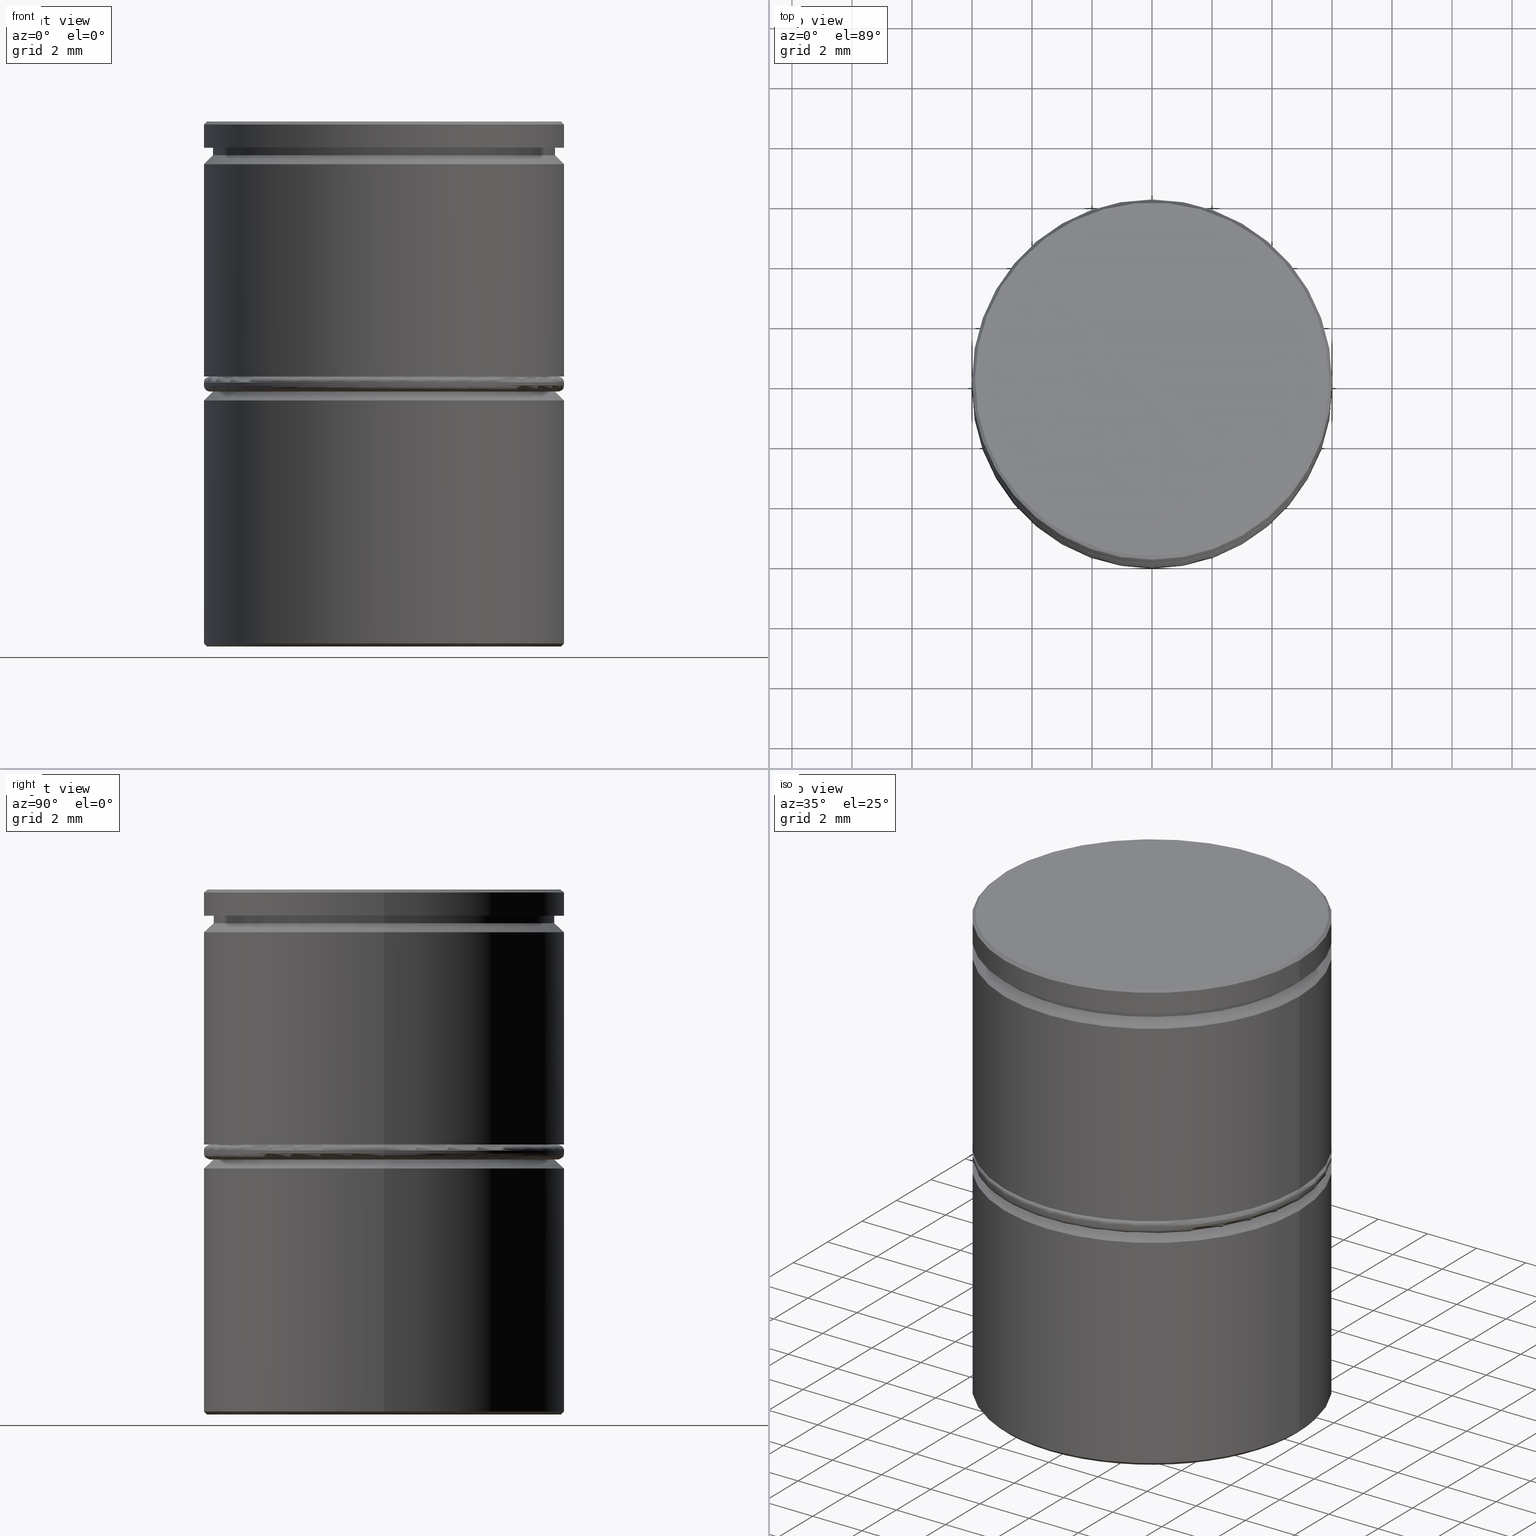
[diagram: canonical four-view strip — front | top / right | iso, engineering-drawing reading convention]
A machine part, canonical four-view strip (front | top / right | iso — engineering-drawing reading convention). The complete STEP part file that produces these views, byte-faithful:
ISO-10303-21;
HEADER;
FILE_DESCRIPTION (( 'STEP AP203' ),
    '1' );
FILE_NAME ('edcc.STEP',
    '2023-09-24T11:07:10',
    ( '' ),
    ( '' ),
    'SwSTEP 2.0',
    'SolidWorks 2019',
    '' );
FILE_SCHEMA (( 'CONFIG_CONTROL_DESIGN' ));
ENDSEC;

DATA;
#1 = ADVANCED_FACE ( 'NONE', ( #1003 ), #600, .F. ) ;
#2 = CARTESIAN_POINT ( 'NONE',  ( 5.800000000000001599, 0.000000000000000000, -9.000000000000001776 ) ) ;
#3 = DIRECTION ( 'NONE',  ( -0.000000000000000000, -0.000000000000000000, 1.000000000000000000 ) ) ;
#4 = CARTESIAN_POINT ( 'NONE',  ( 0.000000000000000000, 0.000000000000000000, 0.000000000000000000 ) ) ;
#5 = EDGE_CURVE ( 'NONE', #654, #218, #971, .T. ) ;
#6 = EDGE_LOOP ( 'NONE', ( #858, #285, #361, #241 ) ) ;
#7 =( LENGTH_UNIT ( ) NAMED_UNIT ( * ) SI_UNIT ( .MILLI., .METRE. ) );
#8 = CARTESIAN_POINT ( 'NONE',  ( 0.000000000000000000, 0.000000000000000000, -17.40000000000000213 ) ) ;
#9 = FACE_OUTER_BOUND ( 'NONE', #745, .T. ) ;
#10 = APPROVAL_PERSON_ORGANIZATION ( #673, #501, #833 ) ;
#11 = AXIS2_PLACEMENT_3D ( 'NONE', #770, #207, #132 ) ;
#12 = VERTEX_POINT ( 'NONE', #512 ) ;
#13 = CIRCLE ( 'NONE', #308, 5.700000000000000178 ) ;
#14 = DIRECTION ( 'NONE',  ( 1.000000000000000000, 0.000000000000000000, 0.000000000000000000 ) ) ;
#15 = EDGE_CURVE ( 'NONE', #237, #76, #610, .T. ) ;
#16 = CIRCLE ( 'NONE', #80, 5.700000000000000178 ) ;
#17 = DIRECTION ( 'NONE',  ( -0.000000000000000000, -0.000000000000000000, -1.000000000000000000 ) ) ;
#18 = CARTESIAN_POINT ( 'NONE',  ( 5.700000000000008171, 6.980486755139922969E-16, -9.000000000000001776 ) ) ;
#19 = FACE_BOUND ( 'NONE', #894, .T. ) ;
#20 = CARTESIAN_POINT ( 'NONE',  ( -5.900000000000002132, 0.000000000000000000, 0.000000000000000000 ) ) ;
#21 = DIRECTION ( 'NONE',  ( -0.7071067811865444641, 0.000000000000000000, -0.7071067811865505703 ) ) ;
#22 = VERTEX_POINT ( 'NONE', #66 ) ;
#23 = EDGE_CURVE ( 'NONE', #680, #353, #369, .T. ) ;
#24 = FACE_OUTER_BOUND ( 'NONE', #170, .T. ) ;
#25 = EDGE_LOOP ( 'NONE', ( #836, #660, #554, #28 ) ) ;
#26 = DIRECTION ( 'NONE',  ( 0.7071067811865505703, 0.000000000000000000, 0.7071067811865444641 ) ) ;
#27 = DIRECTION ( 'NONE',  ( 1.000000000000000000, 0.000000000000000000, 0.000000000000000000 ) ) ;
#28 = ORIENTED_EDGE ( 'NONE', *, *, #317, .F. ) ;
#29 = CC_DESIGN_DATE_AND_TIME_ASSIGNMENT ( #515, #135, ( #36 ) ) ;
#30 = DIRECTION ( 'NONE',  ( -0.000000000000000000, -0.000000000000000000, -1.000000000000000000 ) ) ;
#31 = DIRECTION ( 'NONE',  ( 1.000000000000000000, 0.000000000000000000, 0.000000000000000000 ) ) ;
#32 = EDGE_LOOP ( 'NONE', ( #884, #808, #901, #889 ) ) ;
#33 = DIRECTION ( 'NONE',  ( -0.000000000000000000, -0.000000000000000000, -1.000000000000000000 ) ) ;
#34 = CARTESIAN_POINT ( 'NONE',  ( -6.000000000000000000, 7.347880794884119736E-16, 0.000000000000000000 ) ) ;
#35 = DIRECTION ( 'NONE',  ( 0.000000000000000000, 0.000000000000000000, -1.000000000000000000 ) ) ;
#36 = SECURITY_CLASSIFICATION ( '', '', #72 ) ;
#37 = CARTESIAN_POINT ( 'NONE',  ( 5.700000000000000178, 0.000000000000000000, 0.000000000000000000 ) ) ;
#38 = EDGE_LOOP ( 'NONE', ( #463, #999, #674, #428 ) ) ;
#39 = AXIS2_PLACEMENT_3D ( 'NONE', #713, #3, #815 ) ;
#40 = ADVANCED_FACE ( 'NONE', ( #359 ), #677, .F. ) ;
#41 = AXIS2_PLACEMENT_3D ( 'NONE', #1016, #1018, #496 ) ;
#42 = DIRECTION ( 'NONE',  ( 0.4999999999999998335, -0.8660254037844387076, 0.000000000000000000 ) ) ;
#43 = CIRCLE ( 'NONE', #754, 6.000000000000000000 ) ;
#44 = DIRECTION ( 'NONE',  ( 0.4999999999999998335, 0.8660254037844387076, -0.000000000000000000 ) ) ;
#45 = FACE_OUTER_BOUND ( 'NONE', #897, .T. ) ;
#46 = PERSON_AND_ORGANIZATION_ROLE ( 'design_supplier' ) ;
#47 = ORIENTED_EDGE ( 'NONE', *, *, #857, .T. ) ;
#48 = VERTEX_POINT ( 'NONE', #240 ) ;
#49 = CARTESIAN_POINT ( 'NONE',  ( -8.646952822150503169E-16, -5.888972745734181835, -16.50000000000000000 ) ) ;
#50 = ADVANCED_BREP_SHAPE_REPRESENTATION ( 'edcc', ( #728, #381, #60 ), #949 ) ;
#51 = DIRECTION ( 'NONE',  ( 1.000000000000000000, 0.000000000000000000, 0.000000000000000000 ) ) ;
#52 = LINE ( 'NONE', #37, #288 ) ;
#53 = PERSON_AND_ORGANIZATION ( #1008, #447 ) ;
#54 = ORIENTED_EDGE ( 'NONE', *, *, #70, .T. ) ;
#55 = ORIENTED_EDGE ( 'NONE', *, *, #762, .T. ) ;
#56 = CARTESIAN_POINT ( 'NONE',  ( 0.000000000000000000, 5.888972745734180059, -16.50000000000000000 ) ) ;
#57 = EDGE_CURVE ( 'NONE', #810, #186, #854, .T. ) ;
#58 = APPROVAL_ROLE ( '' ) ;
#59 = ORIENTED_EDGE ( 'NONE', *, *, #438, .F. ) ;
#60 = AXIS2_PLACEMENT_3D ( 'NONE', #589, #595, #493 ) ;
#61 = CARTESIAN_POINT ( 'NONE',  ( 0.000000000000000000, 0.000000000000000000, -8.699999999999999289 ) ) ;
#62 = DIRECTION ( 'NONE',  ( -0.000000000000000000, -0.000000000000000000, 1.000000000000000000 ) ) ;
#63 = AXIS2_PLACEMENT_3D ( 'NONE', #299, #42, #364 ) ;
#64 = CIRCLE ( 'NONE', #662, 6.000000000000000000 ) ;
#65 = AXIS2_PLACEMENT_3D ( 'NONE', #578, #585, #906 ) ;
#66 = CARTESIAN_POINT ( 'NONE',  ( -5.100000000000000533, -2.944486372867089585, -17.50000000000000000 ) ) ;
#67 = APPROVAL_STATUS ( 'not_yet_approved' ) ;
#68 = ORIENTED_EDGE ( 'NONE', *, *, #140, .F. ) ;
#69 = CARTESIAN_POINT ( 'NONE',  ( -6.000000000000000888, 7.347880794884120722E-16, -8.699999999999999289 ) ) ;
#70 = EDGE_CURVE ( 'NONE', #926, #183, #608, .T. ) ;
#71 = DIRECTION ( 'NONE',  ( 0.000000000000000000, 0.000000000000000000, -1.000000000000000000 ) ) ;
#72 = SECURITY_CLASSIFICATION_LEVEL ( 'unclassified' ) ;
#73 = ORIENTED_EDGE ( 'NONE', *, *, #443, .F. ) ;
#74 = ORIENTED_EDGE ( 'NONE', *, *, #537, .T. ) ;
#75 = EDGE_CURVE ( 'NONE', #12, #758, #710, .T. ) ;
#76 = VERTEX_POINT ( 'NONE', #866 ) ;
#77 = CARTESIAN_POINT ( 'NONE',  ( 0.000000000000000000, 0.000000000000000000, 0.000000000000000000 ) ) ;
#78 = EDGE_CURVE ( 'NONE', #186, #392, #701, .T. ) ;
#79 = CARTESIAN_POINT ( 'NONE',  ( 0.000000000000000000, 0.000000000000000000, -8.500000000000000000 ) ) ;
#80 = AXIS2_PLACEMENT_3D ( 'NONE', #687, #751, #201 ) ;
#81 = VERTEX_POINT ( 'NONE', #162 ) ;
#82 = APPROVAL ( #67, 'NEUR�EN�' ) ;
#83 = AXIS2_PLACEMENT_3D ( 'NONE', #996, #811, #104 ) ;
#84 = LINE ( 'NONE', #404, #678 ) ;
#85 = EDGE_CURVE ( 'NONE', #48, #186, #453, .T. ) ;
#86 = DIRECTION ( 'NONE',  ( 0.8660254037844387076, -0.4999999999999998890, 0.000000000000000000 ) ) ;
#87 = ORIENTED_EDGE ( 'NONE', *, *, #835, .T. ) ;
#88 = DIRECTION ( 'NONE',  ( 0.000000000000000000, -1.000000000000000000, 0.000000000000000000 ) ) ;
#89 = FACE_OUTER_BOUND ( 'NONE', #136, .T. ) ;
#90 = ORIENTED_EDGE ( 'NONE', *, *, #510, .F. ) ;
#91 = CARTESIAN_POINT ( 'NONE',  ( 5.099999999999999645, 2.944486372867090029, -16.50000000000000000 ) ) ;
#92 = DIRECTION ( 'NONE',  ( 0.000000000000000000, 0.000000000000000000, 1.000000000000000000 ) ) ;
#93 = CIRCLE ( 'NONE', #676, 5.700000000000000178 ) ;
#94 = DIRECTION ( 'NONE',  ( -1.000000000000000000, 0.000000000000000000, 0.000000000000000000 ) ) ;
#95 =( NAMED_UNIT ( * ) PLANE_ANGLE_UNIT ( ) SI_UNIT ( $, .RADIAN. ) );
#96 = VECTOR ( 'NONE', #1022, 1000.000000000000114 ) ;
#97 = FACE_OUTER_BOUND ( 'NONE', #488, .T. ) ;
#98 = PRODUCT_RELATED_PRODUCT_CATEGORY ( 'detail', '', ( #577 ) ) ;
#99 = DIRECTION ( 'NONE',  ( 0.000000000000000000, 0.000000000000000000, -1.000000000000000000 ) ) ;
#100 = DIRECTION ( 'NONE',  ( -0.000000000000000000, -0.000000000000000000, 1.000000000000000000 ) ) ;
#101 = PLANE ( 'NONE',  #753 ) ;
#102 = ORIENTED_EDGE ( 'NONE', *, *, #438, .T. ) ;
#103 = EDGE_CURVE ( 'NONE', #843, #787, #1007, .T. ) ;
#104 = DIRECTION ( 'NONE',  ( 1.000000000000000000, 0.000000000000000000, 0.000000000000000000 ) ) ;
#105 = DIRECTION ( 'NONE',  ( 0.000000000000000000, 0.000000000000000000, -1.000000000000000000 ) ) ;
#106 = CARTESIAN_POINT ( 'NONE',  ( 0.000000000000000000, 0.000000000000000000, -25.97056274847714263 ) ) ;
#107 = EDGE_LOOP ( 'NONE', ( #283, #458 ) ) ;
#108 = DIRECTION ( 'NONE',  ( -0.000000000000000000, -0.000000000000000000, -1.000000000000000000 ) ) ;
#109 = ORIENTED_EDGE ( 'NONE', *, *, #963, .T. ) ;
#110 = FACE_OUTER_BOUND ( 'NONE', #1005, .T. ) ;
#111 = DIRECTION ( 'NONE',  ( 1.000000000000000000, 0.000000000000000000, 0.000000000000000000 ) ) ;
#112 = AXIS2_PLACEMENT_3D ( 'NONE', #697, #916, #1014 ) ;
#113 = LINE ( 'NONE', #492, #533 ) ;
#114 = VECTOR ( 'NONE', #189, 1000.000000000000114 ) ;
#115 = AXIS2_PLACEMENT_3D ( 'NONE', #486, #358, #675 ) ;
#116 = VECTOR ( 'NONE', #504, 1000.000000000000000 ) ;
#117 = CARTESIAN_POINT ( 'NONE',  ( -5.899999999999999467, 7.286648454926751965E-16, -17.50000000000000000 ) ) ;
#118 = EDGE_LOOP ( 'NONE', ( #943, #294, #210, #932 ) ) ;
#119 = ORIENTED_EDGE ( 'NONE', *, *, #401, .T. ) ;
#120 = DIRECTION ( 'NONE',  ( 0.7071067811865485719, 8.659560562354946417E-17, -0.7071067811865465735 ) ) ;
#121 = DIRECTION ( 'NONE',  ( -0.7071067811865434649, 0.000000000000000000, -0.7071067811865516806 ) ) ;
#122 = EDGE_CURVE ( 'NONE', #341, #981, #166, .T. ) ;
#123 = ORIENTED_EDGE ( 'NONE', *, *, #545, .T. ) ;
#124 = CARTESIAN_POINT ( 'NONE',  ( 0.000000000000000000, 0.000000000000000000, -8.699999999999999289 ) ) ;
#125 = DIRECTION ( 'NONE',  ( 0.7071067811865444641, 8.659560562354897113E-17, -0.7071067811865505703 ) ) ;
#126 = ORIENTED_EDGE ( 'NONE', *, *, #342, .F. ) ;
#127 = EDGE_LOOP ( 'NONE', ( #731, #143 ) ) ;
#128 = VECTOR ( 'NONE', #528, 1000.000000000000000 ) ;
#129 = AXIS2_PLACEMENT_3D ( 'NONE', #965, #248, #322 ) ;
#130 = LINE ( 'NONE', #442, #516 ) ;
#131 = AXIS2_PLACEMENT_3D ( 'NONE', #923, #144, #220 ) ;
#132 = DIRECTION ( 'NONE',  ( 1.000000000000000000, 0.000000000000000000, 0.000000000000000000 ) ) ;
#133 = COORDINATED_UNIVERSAL_TIME_OFFSET ( 1, 0, .AHEAD. ) ;
#134 = DIRECTION ( 'NONE',  ( -0.000000000000000000, -0.000000000000000000, 1.000000000000000000 ) ) ;
#135 = DATE_TIME_ROLE ( 'classification_date' ) ;
#136 = EDGE_LOOP ( 'NONE', ( #298, #959, #1029, #321 ) ) ;
#137 = ORIENTED_EDGE ( 'NONE', *, *, #540, .F. ) ;
#138 = DIRECTION ( 'NONE',  ( 0.000000000000000000, 0.000000000000000000, -1.000000000000000000 ) ) ;
#139 = DIRECTION ( 'NONE',  ( -1.000000000000000000, 0.000000000000000000, -0.000000000000000000 ) ) ;
#140 = EDGE_CURVE ( 'NONE', #218, #654, #149, .T. ) ;
#141 = FACE_OUTER_BOUND ( 'NONE', #437, .T. ) ;
#142 = ORIENTED_EDGE ( 'NONE', *, *, #15, .T. ) ;
#143 = ORIENTED_EDGE ( 'NONE', *, *, #5, .T. ) ;
#144 = DIRECTION ( 'NONE',  ( 0.000000000000000000, 0.000000000000000000, -1.000000000000000000 ) ) ;
#145 = DATE_AND_TIME ( #538, #495 ) ;
#146 = ORIENTED_EDGE ( 'NONE', *, *, #443, .T. ) ;
#147 = CC_DESIGN_APPROVAL ( #469, ( #36 ) ) ;
#148 = DIRECTION ( 'NONE',  ( 0.000000000000000000, 0.000000000000000000, 1.000000000000000000 ) ) ;
#149 = CIRCLE ( 'NONE', #724, 5.700000000000000178 ) ;
#150 = DIRECTION ( 'NONE',  ( 0.000000000000000000, 0.000000000000000000, -1.000000000000000000 ) ) ;
#151 = AXIS2_PLACEMENT_3D ( 'NONE', #922, #219, #750 ) ;
#152 = CONICAL_SURFACE ( 'NONE', #309, 5.700000000000008171, 0.7853981633974497223 ) ;
#153 = CIRCLE ( 'NONE', #278, 5.800000000000001599 ) ;
#154 = DIRECTION ( 'NONE',  ( -0.000000000000000000, -0.000000000000000000, -1.000000000000000000 ) ) ;
#155 = DATE_TIME_ROLE ( 'creation_date' ) ;
#156 = ORIENTED_EDGE ( 'NONE', *, *, #718, .F. ) ;
#157 = EDGE_LOOP ( 'NONE', ( #295, #774, #485, #527 ) ) ;
#158 = DIRECTION ( 'NONE',  ( 1.000000000000000000, 0.000000000000000000, 0.000000000000000000 ) ) ;
#159 = DIRECTION ( 'NONE',  ( -0.000000000000000000, -0.000000000000000000, 1.000000000000000000 ) ) ;
#160 = ORIENTED_EDGE ( 'NONE', *, *, #398, .F. ) ;
#161 = DIRECTION ( 'NONE',  ( -1.000000000000000000, 0.000000000000000000, -0.000000000000000000 ) ) ;
#162 = CARTESIAN_POINT ( 'NONE',  ( 6.000000000000000000, 0.000000000000000000, -17.40000000000000213 ) ) ;
#163 = EDGE_LOOP ( 'NONE', ( #799, #74, #872, #137 ) ) ;
#164 = ORIENTED_EDGE ( 'NONE', *, *, #489, .F. ) ;
#165 = PLANE ( 'NONE',  #452 ) ;
#166 = CIRCLE ( 'NONE', #855, 0.1999999999999996503 ) ;
#167 = DESIGN_CONTEXT ( 'detailed design', #873, 'design' ) ;
#168 = DIRECTION ( 'NONE',  ( -0.7071067811865505703, 8.659560562354969836E-17, 0.7071067811865444641 ) ) ;
#169 = AXIS2_PLACEMENT_3D ( 'NONE', #483, #960, #94 ) ;
#170 = EDGE_LOOP ( 'NONE', ( #814, #126, #175, #324 ) ) ;
#171 = AXIS2_PLACEMENT_3D ( 'NONE', #941, #649, #804 ) ;
#172 = CARTESIAN_POINT ( 'NONE',  ( 0.000000000000000000, 0.000000000000000000, -8.500000000000000000 ) ) ;
#173 = CARTESIAN_POINT ( 'NONE',  ( 0.000000000000000000, 0.000000000000000000, -8.800000000000002487 ) ) ;
#174 = EDGE_CURVE ( 'NONE', #976, #218, #380, .T. ) ;
#175 = ORIENTED_EDGE ( 'NONE', *, *, #716, .F. ) ;
#176 = LINE ( 'NONE', #665, #433 ) ;
#177 = CARTESIAN_POINT ( 'NONE',  ( 5.099999999999999645, 2.944486372867090029, -16.50000000000000000 ) ) ;
#178 = EDGE_CURVE ( 'NONE', #787, #757, #780, .T. ) ;
#179 = ORIENTED_EDGE ( 'NONE', *, *, #762, .F. ) ;
#180 = LINE ( 'NONE', #411, #212 ) ;
#181 = FACE_BOUND ( 'NONE', #370, .T. ) ;
#182 = DIRECTION ( 'NONE',  ( 0.000000000000000000, 0.000000000000000000, -1.000000000000000000 ) ) ;
#183 = VERTEX_POINT ( 'NONE', #930 ) ;
#184 = CYLINDRICAL_SURFACE ( 'NONE', #115, 6.000000000000000888 ) ;
#185 = CARTESIAN_POINT ( 'NONE',  ( 6.000000000000000000, 0.000000000000000000, -0.8749999999999998890 ) ) ;
#186 = VERTEX_POINT ( 'NONE', #934 ) ;
#187 = DIRECTION ( 'NONE',  ( -0.000000000000000000, -0.000000000000000000, 1.000000000000000000 ) ) ;
#188 = EDGE_CURVE ( 'NONE', #297, #237, #368, .T. ) ;
#189 = DIRECTION ( 'NONE',  ( -0.8660254037844387076, -0.4999999999999998890, 0.000000000000000000 ) ) ;
#190 = VERTEX_POINT ( 'NONE', #446 ) ;
#191 = FACE_OUTER_BOUND ( 'NONE', #118, .T. ) ;
#192 = LINE ( 'NONE', #914, #726 ) ;
#193 = PERSON_AND_ORGANIZATION ( #1008, #447 ) ;
#194 = VERTEX_POINT ( 'NONE', #606 ) ;
#195 = VECTOR ( 'NONE', #824, 1000.000000000000000 ) ;
#196 = AXIS2_PLACEMENT_3D ( 'NONE', #910, #202, #1025 ) ;
#197 = AXIS2_PLACEMENT_3D ( 'NONE', #650, #519, #150 ) ;
#198 = CYLINDRICAL_SURFACE ( 'NONE', #246, 6.000000000000000888 ) ;
#199 = CARTESIAN_POINT ( 'NONE',  ( 6.000000000000000888, 0.000000000000000000, -25.97056274847714263 ) ) ;
#200 = ORIENTED_EDGE ( 'NONE', *, *, #537, .F. ) ;
#201 = DIRECTION ( 'NONE',  ( 1.000000000000000000, 0.000000000000000000, 0.000000000000000000 ) ) ;
#202 = DIRECTION ( 'NONE',  ( 0.000000000000000000, 0.000000000000000000, -1.000000000000000000 ) ) ;
#203 = LINE ( 'NONE', #744, #195 ) ;
#204 = ORIENTED_EDGE ( 'NONE', *, *, #975, .T. ) ;
#205 = CARTESIAN_POINT ( 'NONE',  ( 0.000000000000000000, 0.000000000000000000, 0.000000000000000000 ) ) ;
#206 = CC_DESIGN_SECURITY_CLASSIFICATION ( #36, ( #933 ) ) ;
#207 = DIRECTION ( 'NONE',  ( -0.000000000000000000, -0.000000000000000000, 1.000000000000000000 ) ) ;
#208 = DIRECTION ( 'NONE',  ( 1.000000000000000000, 0.000000000000000000, 0.000000000000000000 ) ) ;
#209 = DATE_AND_TIME ( #756, #547 ) ;
#210 = ORIENTED_EDGE ( 'NONE', *, *, #284, .T. ) ;
#211 = EDGE_CURVE ( 'NONE', #605, #48, #686, .T. ) ;
#212 = VECTOR ( 'NONE', #730, 1000.000000000000000 ) ;
#213 = CARTESIAN_POINT ( 'NONE',  ( 6.000000000000000000, 0.000000000000000000, 0.000000000000000000 ) ) ;
#214 = DIRECTION ( 'NONE',  ( 0.000000000000000000, 0.000000000000000000, -1.000000000000000000 ) ) ;
#215 = AXIS2_PLACEMENT_3D ( 'NONE', #4, #1034, #964 ) ;
#216 = DIRECTION ( 'NONE',  ( -1.000000000000000000, 0.000000000000000000, 0.000000000000000000 ) ) ;
#217 = PERSON_AND_ORGANIZATION ( #1008, #447 ) ;
#218 = VERTEX_POINT ( 'NONE', #522 ) ;
#219 = DIRECTION ( 'NONE',  ( 0.000000000000000000, 0.000000000000000000, -1.000000000000000000 ) ) ;
#220 = DIRECTION ( 'NONE',  ( -1.000000000000000000, 0.000000000000000000, 0.000000000000000000 ) ) ;
#221 = ADVANCED_FACE ( 'NONE', ( #224 ), #706, .T. ) ;
#222 = EDGE_LOOP ( 'NONE', ( #506, #621 ) ) ;
#223 = ORIENTED_EDGE ( 'NONE', *, *, #862, .F. ) ;
#224 = FACE_OUTER_BOUND ( 'NONE', #548, .T. ) ;
#225 = DIRECTION ( 'NONE',  ( -0.7071067811865485719, 0.000000000000000000, -0.7071067811865465735 ) ) ;
#226 = PERSON_AND_ORGANIZATION ( #1008, #447 ) ;
#227 = VERTEX_POINT ( 'NONE', #69 ) ;
#228 = ORIENTED_EDGE ( 'NONE', *, *, #57, .F. ) ;
#229 = DIRECTION ( 'NONE',  ( -0.8660254037844387076, -0.4999999999999998890, 0.000000000000000000 ) ) ;
#230 = VECTOR ( 'NONE', #314, 1000.000000000000114 ) ;
#231 = CARTESIAN_POINT ( 'NONE',  ( 5.099999999999999645, 2.944486372867090029, -17.50000000000000000 ) ) ;
#232 = ADVANCED_FACE ( 'NONE', ( #623 ), #261, .T. ) ;
#233 = ORIENTED_EDGE ( 'NONE', *, *, #489, .T. ) ;
#234 = ADVANCED_FACE ( 'NONE', ( #373 ), #768, .T. ) ;
#235 = PLANE ( 'NONE',  #292 ) ;
#236 = FACE_OUTER_BOUND ( 'NONE', #711, .T. ) ;
#237 = VERTEX_POINT ( 'NONE', #616 ) ;
#238 = LINE ( 'NONE', #177, #892 ) ;
#239 = LINE ( 'NONE', #951, #1030 ) ;
#240 = CARTESIAN_POINT ( 'NONE',  ( 0.000000000000000000, 5.888972745734180059, -17.50000000000000000 ) ) ;
#241 = ORIENTED_EDGE ( 'NONE', *, *, #1023, .F. ) ;
#242 = CARTESIAN_POINT ( 'NONE',  ( 0.000000000000000000, 0.000000000000000000, -8.800000000000002487 ) ) ;
#243 = EDGE_CURVE ( 'NONE', #81, #444, #844, .T. ) ;
#244 = DIRECTION ( 'NONE',  ( -0.5000000000000003331, -0.8660254037844385966, 0.000000000000000000 ) ) ;
#245 = VECTOR ( 'NONE', #360, 1000.000000000000000 ) ;
#246 = AXIS2_PLACEMENT_3D ( 'NONE', #106, #426, #111 ) ;
#247 = ORIENTED_EDGE ( 'NONE', *, *, #280, .T. ) ;
#248 = DIRECTION ( 'NONE',  ( -0.000000000000000000, -0.000000000000000000, 1.000000000000000000 ) ) ;
#249 = CARTESIAN_POINT ( 'NONE',  ( -5.100000000000000533, -2.944486372867089585, -16.50000000000000000 ) ) ;
#250 = PLANE ( 'NONE',  #348 ) ;
#251 = ADVANCED_FACE ( 'NONE', ( #759 ), #837, .F. ) ;
#252 = CARTESIAN_POINT ( 'NONE',  ( 6.000000000000000000, 0.000000000000000000, 0.000000000000000000 ) ) ;
#253 = CARTESIAN_POINT ( 'NONE',  ( 0.000000000000000000, 5.888972745734180059, -16.50000000000000000 ) ) ;
#254 = DIRECTION ( 'NONE',  ( -1.000000000000000000, 0.000000000000000000, -0.000000000000000000 ) ) ;
#255 = ADVANCED_FACE ( 'NONE', ( #777 ), #738, .T. ) ;
#256 = EDGE_CURVE ( 'NONE', #194, #48, #130, .T. ) ;
#257 = CARTESIAN_POINT ( 'NONE',  ( 0.000000000000000000, 0.000000000000000000, 0.000000000000000000 ) ) ;
#258 = DIRECTION ( 'NONE',  ( -0.000000000000000000, 0.000000000000000000, -1.000000000000000000 ) ) ;
#259 = EDGE_LOOP ( 'NONE', ( #543, #204, #789, #1021 ) ) ;
#260 = LOCAL_TIME ( 13, 7, 10.00000000000000000, #684 ) ;
#261 = TOROIDAL_SURFACE ( 'NONE', #388, 5.800000000000001599, 0.2000000000000000111 ) ;
#262 = ADVANCED_FACE ( 'NONE', ( #289 ), #277, .T. ) ;
#263 = CIRCLE ( 'NONE', #838, 5.800000000000001599 ) ;
#264 = CARTESIAN_POINT ( 'NONE',  ( 0.000000000000000000, 0.000000000000000000, -9.299999999999991829 ) ) ;
#265 = ORIENTED_EDGE ( 'NONE', *, *, #371, .F. ) ;
#266 = CARTESIAN_POINT ( 'NONE',  ( -5.800000000000001599, 7.225416114969385180E-16, -9.000000000000001776 ) ) ;
#267 = DIRECTION ( 'NONE',  ( -0.000000000000000000, -0.000000000000000000, 1.000000000000000000 ) ) ;
#268 = ORIENTED_EDGE ( 'NONE', *, *, #989, .T. ) ;
#269 = CARTESIAN_POINT ( 'NONE',  ( 5.899999999999999467, 0.000000000000000000, -17.50000000000000000 ) ) ;
#270 = CYLINDRICAL_SURFACE ( 'NONE', #631, 6.000000000000000000 ) ;
#271 = EDGE_LOOP ( 'NONE', ( #590, #834, #462, #749, #304, #109 ) ) ;
#272 = ADVANCED_FACE ( 'NONE', ( #927 ), #379, .F. ) ;
#273 = LINE ( 'NONE', #410, #739 ) ;
#274 = VECTOR ( 'NONE', #168, 1000.000000000000000 ) ;
#275 = CARTESIAN_POINT ( 'NONE',  ( 0.000000000000000000, 0.000000000000000000, -17.50000000000000000 ) ) ;
#276 = ORIENTED_EDGE ( 'NONE', *, *, #540, .T. ) ;
#277 = CONICAL_SURFACE ( 'NONE', #151, 5.700000000000004619, 0.7853981633974425058 ) ;
#278 = AXIS2_PLACEMENT_3D ( 'NONE', #572, #187, #491 ) ;
#279 = EDGE_CURVE ( 'NONE', #976, #12, #737, .T. ) ;
#280 = EDGE_CURVE ( 'NONE', #758, #444, #287, .T. ) ;
#281 = ORIENTED_EDGE ( 'NONE', *, *, #122, .F. ) ;
#282 = ORIENTED_EDGE ( 'NONE', *, *, #977, .T. ) ;
#283 = ORIENTED_EDGE ( 'NONE', *, *, #103, .T. ) ;
#284 = EDGE_CURVE ( 'NONE', #76, #237, #480, .T. ) ;
#285 = ORIENTED_EDGE ( 'NONE', *, *, #989, .F. ) ;
#286 = AXIS2_PLACEMENT_3D ( 'NONE', #242, #148, #1001 ) ;
#287 = CIRCLE ( 'NONE', #821, 6.000000000000000000 ) ;
#288 = VECTOR ( 'NONE', #574, 1000.000000000000000 ) ;
#289 = FACE_OUTER_BOUND ( 'NONE', #38, .T. ) ;
#290 = CARTESIAN_POINT ( 'NONE',  ( 0.000000000000000000, 0.000000000000000000, -9.299999999999991829 ) ) ;
#291 = EDGE_CURVE ( 'NONE', #297, #812, #375, .T. ) ;
#292 = AXIS2_PLACEMENT_3D ( 'NONE', #864, #886, #161 ) ;
#293 = CARTESIAN_POINT ( 'NONE',  ( -5.100000000000000533, -2.944486372867089585, -16.50000000000000000 ) ) ;
#294 = ORIENTED_EDGE ( 'NONE', *, *, #816, .T. ) ;
#295 = ORIENTED_EDGE ( 'NONE', *, *, #703, .T. ) ;
#296 = CARTESIAN_POINT ( 'NONE',  ( 0.000000000000000000, 0.000000000000000000, -9.000000000000001776 ) ) ;
#297 = VERTEX_POINT ( 'NONE', #185 ) ;
#298 = ORIENTED_EDGE ( 'NONE', *, *, #593, .F. ) ;
#299 = CARTESIAN_POINT ( 'NONE',  ( 5.099999999999999645, -2.944486372867090918, -16.50000000000000000 ) ) ;
#300 = FACE_OUTER_BOUND ( 'NONE', #259, .T. ) ;
#301 = EDGE_CURVE ( 'NONE', #227, #981, #327, .T. ) ;
#302 = CARTESIAN_POINT ( 'NONE',  ( 5.700000000000000178, 0.000000000000000000, 0.000000000000000000 ) ) ;
#303 = PERSON_AND_ORGANIZATION ( #1008, #447 ) ;
#304 = ORIENTED_EDGE ( 'NONE', *, *, #698, .T. ) ;
#305 = AXIS2_PLACEMENT_3D ( 'NONE', #668, #105, #254 ) ;
#306 = CARTESIAN_POINT ( 'NONE',  ( -5.100000000000000533, -2.944486372867089585, -17.50000000000000000 ) ) ;
#307 = CLOSED_SHELL ( 'NONE', ( #262, #1024, #898, #597, #490, #234, #688, #614, #962, #690, #772, #557, #435, #582, #628, #929, #484, #746, #565, #601, #255, #409, #570, #1, #611, #272, #352, #40, #1013 ) ) ;
#308 = AXIS2_PLACEMENT_3D ( 'NONE', #659, #683, #31 ) ;
#309 = AXIS2_PLACEMENT_3D ( 'NONE', #793, #935, #860 ) ;
#310 = CARTESIAN_POINT ( 'NONE',  ( 0.000000000000000000, 0.000000000000000000, -8.500000000000000000 ) ) ;
#311 = TOROIDAL_SURFACE ( 'NONE', #775, 5.800000000000001599, 0.2000000000000000111 ) ;
#312 = CARTESIAN_POINT ( 'NONE',  ( 5.099999999999999645, 2.944486372867090029, -16.50000000000000000 ) ) ;
#313 = ORIENTED_EDGE ( 'NONE', *, *, #862, .T. ) ;
#314 = DIRECTION ( 'NONE',  ( 0.8660254037844389297, 0.4999999999999995559, 0.000000000000000000 ) ) ;
#315 = CARTESIAN_POINT ( 'NONE',  ( -6.000000000000000000, 7.347880794884119736E-16, -17.40000000000000213 ) ) ;
#316 = ORIENTED_EDGE ( 'NONE', *, *, #174, .F. ) ;
#317 = EDGE_CURVE ( 'NONE', #757, #81, #694, .T. ) ;
#318 = CARTESIAN_POINT ( 'NONE',  ( 0.000000000000000000, 0.000000000000000000, -9.000000000000001776 ) ) ;
#319 = DIRECTION ( 'NONE',  ( 0.000000000000000000, 0.000000000000000000, 1.000000000000000000 ) ) ;
#320 = DIRECTION ( 'NONE',  ( 0.7071067811865434649, 8.659560562354884787E-17, -0.7071067811865516806 ) ) ;
#321 = ORIENTED_EDGE ( 'NONE', *, *, #1023, .T. ) ;
#322 = DIRECTION ( 'NONE',  ( 1.000000000000000000, 0.000000000000000000, 0.000000000000000000 ) ) ;
#323 = APPLICATION_PROTOCOL_DEFINITION ( 'international standard', 'config_control_design', 1994, #817 ) ;
#324 = ORIENTED_EDGE ( 'NONE', *, *, #57, .T. ) ;
#325 = CARTESIAN_POINT ( 'NONE',  ( 0.000000000000000000, 0.000000000000000000, 0.000000000000000000 ) ) ;
#326 = VECTOR ( 'NONE', #629, 1000.000000000000000 ) ;
#327 = CIRCLE ( 'NONE', #645, 6.000000000000000888 ) ;
#328 = CIRCLE ( 'NONE', #196, 6.000000000000000000 ) ;
#329 = ORIENTED_EDGE ( 'NONE', *, *, #655, .F. ) ;
#330 = VECTOR ( 'NONE', #33, 1000.000000000000000 ) ;
#331 = CARTESIAN_POINT ( 'NONE',  ( 5.099999999999999645, -2.944486372867090918, -17.50000000000000000 ) ) ;
#332 = LINE ( 'NONE', #306, #791 ) ;
#333 = CARTESIAN_POINT ( 'NONE',  ( 0.000000000000000000, 0.000000000000000000, 0.000000000000000000 ) ) ;
#334 = DIRECTION ( 'NONE',  ( 1.000000000000000000, 0.000000000000000000, 0.000000000000000000 ) ) ;
#335 = DIRECTION ( 'NONE',  ( 0.000000000000000000, 0.000000000000000000, -1.000000000000000000 ) ) ;
#336 = ORIENTED_EDGE ( 'NONE', *, *, #284, .F. ) ;
#337 = EDGE_CURVE ( 'NONE', #596, #445, #613, .T. ) ;
#338 = CARTESIAN_POINT ( 'NONE',  ( 0.000000000000000000, 0.000000000000000000, -1.424999999999999156 ) ) ;
#339 = DIRECTION ( 'NONE',  ( 0.000000000000000000, 0.000000000000000000, -1.000000000000000000 ) ) ;
#340 = CC_DESIGN_DATE_AND_TIME_ASSIGNMENT ( #209, #155, ( #846 ) ) ;
#341 = VERTEX_POINT ( 'NONE', #735 ) ;
#342 = EDGE_CURVE ( 'NONE', #1012, #392, #893, .T. ) ;
#343 = VECTOR ( 'NONE', #635, 1000.000000000000000 ) ;
#344 = CIRCLE ( 'NONE', #988, 5.899999999999999467 ) ;
#345 = PLANE ( 'NONE',  #919 ) ;
#346 = APPLICATION_PROTOCOL_DEFINITION ( 'international standard', 'config_control_design', 1994, #873 ) ;
#347 = ORIENTED_EDGE ( 'NONE', *, *, #85, .F. ) ;
#348 = AXIS2_PLACEMENT_3D ( 'NONE', #257, #562, #457 ) ;
#349 = APPROVAL_DATE_TIME ( #520, #469 ) ;
#350 = EDGE_LOOP ( 'NONE', ( #87, #55, #1017, #160 ) ) ;
#351 = FACE_OUTER_BOUND ( 'NONE', #532, .T. ) ;
#352 = ADVANCED_FACE ( 'NONE', ( #24 ), #345, .F. ) ;
#353 = VERTEX_POINT ( 'NONE', #555 ) ;
#354 = DIRECTION ( 'NONE',  ( 1.000000000000000000, 0.000000000000000000, 0.000000000000000000 ) ) ;
#355 = CARTESIAN_POINT ( 'NONE',  ( 0.000000000000000000, 0.000000000000000000, 0.000000000000000000 ) ) ;
#356 = ORIENTED_EDGE ( 'NONE', *, *, #639, .F. ) ;
#357 = CC_DESIGN_PERSON_AND_ORGANIZATION_ASSIGNMENT ( #193, #994, ( #577 ) ) ;
#358 = DIRECTION ( 'NONE',  ( -0.000000000000000000, -0.000000000000000000, 1.000000000000000000 ) ) ;
#359 = FACE_OUTER_BOUND ( 'NONE', #764, .T. ) ;
#360 = DIRECTION ( 'NONE',  ( -0.000000000000000000, -0.000000000000000000, 1.000000000000000000 ) ) ;
#361 = ORIENTED_EDGE ( 'NONE', *, *, #75, .T. ) ;
#362 = VECTOR ( 'NONE', #880, 1000.000000000000000 ) ;
#363 = EDGE_CURVE ( 'NONE', #782, #341, #263, .T. ) ;
#364 = DIRECTION ( 'NONE',  ( 0.8660254037844387076, 0.4999999999999998335, 0.000000000000000000 ) ) ;
#365 = DIRECTION ( 'NONE',  ( -0.000000000000000000, -0.000000000000000000, 1.000000000000000000 ) ) ;
#366 = PERSON_AND_ORGANIZATION ( #1008, #447 ) ;
#367 = VERTEX_POINT ( 'NONE', #969 ) ;
#368 = LINE ( 'NONE', #213, #987 ) ;
#369 = LINE ( 'NONE', #827, #902 ) ;
#370 = EDGE_LOOP ( 'NONE', ( #851, #356, #795, #223, #473, #347 ) ) ;
#371 = EDGE_CURVE ( 'NONE', #970, #820, #953, .T. ) ;
#372 = ORIENTED_EDGE ( 'NONE', *, *, #531, .T. ) ;
#373 = FACE_OUTER_BOUND ( 'NONE', #847, .T. ) ;
#374 = ORIENTED_EDGE ( 'NONE', *, *, #401, .F. ) ;
#375 = CIRCLE ( 'NONE', #129, 6.000000000000000000 ) ;
#376 = AXIS2_PLACEMENT_3D ( 'NONE', #984, #100, #968 ) ;
#377 = DIRECTION ( 'NONE',  ( -0.000000000000000000, -0.000000000000000000, 1.000000000000000000 ) ) ;
#378 = ORIENTED_EDGE ( 'NONE', *, *, #5, .F. ) ;
#379 = PLANE ( 'NONE',  #63 ) ;
#380 = LINE ( 'NONE', #302, #326 ) ;
#381 = MANIFOLD_SOLID_BREP ( 'Zaoblit1', #566 ) ;
#382 = PERSON_AND_ORGANIZATION_ROLE ( 'classification_officer' ) ;
#383 = ORIENTED_EDGE ( 'NONE', *, *, #977, .F. ) ;
#384 = EDGE_CURVE ( 'NONE', #820, #76, #176, .T. ) ;
#385 = DIRECTION ( 'NONE',  ( 1.224646799147353207E-16, 1.000000000000000000, -0.000000000000000000 ) ) ;
#386 = ORIENTED_EDGE ( 'NONE', *, *, #656, .F. ) ;
#387 = LINE ( 'NONE', #249, #632 ) ;
#388 = AXIS2_PLACEMENT_3D ( 'NONE', #124, #436, #830 ) ;
#389 = EDGE_CURVE ( 'NONE', #605, #810, #974, .T. ) ;
#390 = AXIS2_PLACEMENT_3D ( 'NONE', #61, #966, #1033 ) ;
#391 = CARTESIAN_POINT ( 'NONE',  ( 5.800000000000001599, 7.102951435054649637E-16, -8.699999999999999289 ) ) ;
#392 = VERTEX_POINT ( 'NONE', #331 ) ;
#393 = DIRECTION ( 'NONE',  ( -0.8660254037844384856, 0.5000000000000002220, 0.000000000000000000 ) ) ;
#394 = CYLINDRICAL_SURFACE ( 'NONE', #498, 6.000000000000000000 ) ;
#395 = ORIENTED_EDGE ( 'NONE', *, *, #593, .T. ) ;
#396 = DIRECTION ( 'NONE',  ( -1.000000000000000000, 0.000000000000000000, 0.000000000000000000 ) ) ;
#397 = ORIENTED_EDGE ( 'NONE', *, *, #342, .T. ) ;
#398 = EDGE_CURVE ( 'NONE', #367, #995, #888, .T. ) ;
#399 = CARTESIAN_POINT ( 'NONE',  ( -5.700000000000000178, 6.980486755139913108E-16, -8.500000000000000000 ) ) ;
#400 = CARTESIAN_POINT ( 'NONE',  ( 0.000000000000000000, 0.000000000000000000, 0.000000000000000000 ) ) ;
#401 = EDGE_CURVE ( 'NONE', #81, #757, #552, .T. ) ;
#402 = ORIENTED_EDGE ( 'NONE', *, *, #448, .T. ) ;
#403 = DIRECTION ( 'NONE',  ( 0.000000000000000000, 0.000000000000000000, -1.000000000000000000 ) ) ;
#404 = CARTESIAN_POINT ( 'NONE',  ( -8.646952822150503169E-16, -5.888972745734181835, -17.50000000000000000 ) ) ;
#405 = AXIS2_PLACEMENT_3D ( 'NONE', #439, #985, #669 ) ;
#406 = CONICAL_SURFACE ( 'NONE', #131, 5.900000000000002132, 0.7853981633974439491 ) ;
#407 = DIRECTION ( 'NONE',  ( -1.000000000000000000, 0.000000000000000000, 0.000000000000000000 ) ) ;
#408 = CARTESIAN_POINT ( 'NONE',  ( -8.646952822150503169E-16, -5.888972745734181835, -16.50000000000000000 ) ) ;
#409 = ADVANCED_FACE ( 'NONE', ( #648 ), #874, .T. ) ;
#410 = CARTESIAN_POINT ( 'NONE',  ( 6.000000000000000000, 0.000000000000000000, -17.40000000000000213 ) ) ;
#411 = CARTESIAN_POINT ( 'NONE',  ( -5.700000000000000178, 6.980486755139913108E-16, 0.000000000000000000 ) ) ;
#412 = EDGE_LOOP ( 'NONE', ( #517, #511, #374, #722 ) ) ;
#413 = LINE ( 'NONE', #732, #905 ) ;
#414 = CARTESIAN_POINT ( 'NONE',  ( -5.100000000000000533, -2.944486372867089585, -16.50000000000000000 ) ) ;
#415 = DIRECTION ( 'NONE',  ( -0.000000000000000000, -0.000000000000000000, 1.000000000000000000 ) ) ;
#416 = ORIENTED_EDGE ( 'NONE', *, *, #389, .F. ) ;
#417 = APPROVAL_PERSON_ORGANIZATION ( #53, #469, #620 ) ;
#418 = LINE ( 'NONE', #34, #876 ) ;
#419 = AXIS2_PLACEMENT_3D ( 'NONE', #355, #134, #602 ) ;
#420 = ORIENTED_EDGE ( 'NONE', *, *, #15, .F. ) ;
#421 = CIRCLE ( 'NONE', #376, 6.000000000000000000 ) ;
#422 = APPROVAL_DATE_TIME ( #500, #501 ) ;
#423 = EDGE_LOOP ( 'NONE', ( #530, #1035, #372, #640 ) ) ;
#424 = FACE_OUTER_BOUND ( 'NONE', #423, .T. ) ;
#425 = CARTESIAN_POINT ( 'NONE',  ( 5.700000000000000178, 0.000000000000000000, -9.000000000000001776 ) ) ;
#426 = DIRECTION ( 'NONE',  ( -0.000000000000000000, -0.000000000000000000, 1.000000000000000000 ) ) ;
#427 = EDGE_LOOP ( 'NONE', ( #612, #625 ) ) ;
#428 = ORIENTED_EDGE ( 'NONE', *, *, #23, .F. ) ;
#429 = CARTESIAN_POINT ( 'NONE',  ( 6.000000000000000000, 0.000000000000000000, 0.000000000000000000 ) ) ;
#430 = CIRCLE ( 'NONE', #1026, 6.000000000000000000 ) ;
#431 = AXIS2_PLACEMENT_3D ( 'NONE', #529, #71, #786 ) ;
#432 = ORIENTED_EDGE ( 'NONE', *, *, #801, .F. ) ;
#433 = VECTOR ( 'NONE', #21, 1000.000000000000000 ) ;
#434 = ORIENTED_EDGE ( 'NONE', *, *, #384, .T. ) ;
#435 = ADVANCED_FACE ( 'NONE', ( #19, #559 ), #101, .T. ) ;
#436 = DIRECTION ( 'NONE',  ( 0.000000000000000000, 0.000000000000000000, -1.000000000000000000 ) ) ;
#437 = EDGE_LOOP ( 'NONE', ( #508, #564, #156, #779 ) ) ;
#438 = EDGE_CURVE ( 'NONE', #12, #654, #180, .T. ) ;
#439 = CARTESIAN_POINT ( 'NONE',  ( 0.000000000000000000, 0.000000000000000000, -8.699999999999999289 ) ) ;
#440 = ORIENTED_EDGE ( 'NONE', *, *, #963, .F. ) ;
#441 = ORIENTED_EDGE ( 'NONE', *, *, #279, .T. ) ;
#442 = CARTESIAN_POINT ( 'NONE',  ( -5.100000000000000533, 2.944486372867091806, -17.50000000000000000 ) ) ;
#443 = EDGE_CURVE ( 'NONE', #445, #596, #13, .T. ) ;
#444 = VERTEX_POINT ( 'NONE', #691 ) ;
#445 = VERTEX_POINT ( 'NONE', #499 ) ;
#446 = CARTESIAN_POINT ( 'NONE',  ( -5.100000000000000533, 2.944486372867091806, -16.50000000000000000 ) ) ;
#447 = ORGANIZATION ( 'NEUR�EN�', 'NEUR�EN�', '' ) ;
#448 = EDGE_CURVE ( 'NONE', #970, #237, #192, .T. ) ;
#449 = APPROVAL_DATE_TIME ( #145, #82 ) ;
#450 = ORIENTED_EDGE ( 'NONE', *, *, #122, .T. ) ;
#451 = AXIS2_PLACEMENT_3D ( 'NONE', #642, #476, #14 ) ;
#452 = AXIS2_PLACEMENT_3D ( 'NONE', #544, #244, #797 ) ;
#453 = LINE ( 'NONE', #461, #584 ) ;
#454 = ORIENTED_EDGE ( 'NONE', *, *, #211, .T. ) ;
#455 = ORIENTED_EDGE ( 'NONE', *, *, #752, .F. ) ;
#456 = DIRECTION ( 'NONE',  ( 1.000000000000000000, 0.000000000000000000, 0.000000000000000000 ) ) ;
#457 = DIRECTION ( 'NONE',  ( 1.000000000000000000, 0.000000000000000000, 0.000000000000000000 ) ) ;
#458 = ORIENTED_EDGE ( 'NONE', *, *, #524, .T. ) ;
#459 = EDGE_CURVE ( 'NONE', #190, #194, #203, .T. ) ;
#460 = DIRECTION ( 'NONE',  ( -0.000000000000000000, -0.000000000000000000, 1.000000000000000000 ) ) ;
#461 = CARTESIAN_POINT ( 'NONE',  ( 0.000000000000000000, 5.888972745734180059, -17.50000000000000000 ) ) ;
#462 = ORIENTED_EDGE ( 'NONE', *, *, #716, .T. ) ;
#463 = ORIENTED_EDGE ( 'NONE', *, *, #545, .F. ) ;
#464 = DIRECTION ( 'NONE',  ( 0.000000000000000000, 0.000000000000000000, -1.000000000000000000 ) ) ;
#465 = AXIS2_PLACEMENT_3D ( 'NONE', #845, #214, #139 ) ;
#466 = AXIS2_PLACEMENT_3D ( 'NONE', #569, #415, #487 ) ;
#467 = DIRECTION ( 'NONE',  ( -0.000000000000000000, -0.000000000000000000, 1.000000000000000000 ) ) ;
#468 = ORIENTED_EDGE ( 'NONE', *, *, #243, .F. ) ;
#469 = APPROVAL ( #513, 'NEUR�EN�' ) ;
#470 = CARTESIAN_POINT ( 'NONE',  ( 0.000000000000000000, 0.000000000000000000, -17.40000000000000213 ) ) ;
#471 = CARTESIAN_POINT ( 'NONE',  ( -8.646952822150503169E-16, -5.888972745734181835, -17.50000000000000000 ) ) ;
#472 = CARTESIAN_POINT ( 'NONE',  ( 0.000000000000000000, 0.000000000000000000, -1.125000000000000222 ) ) ;
#473 = ORIENTED_EDGE ( 'NONE', *, *, #78, .F. ) ;
#474 = DIRECTION ( 'NONE',  ( 1.000000000000000000, 0.000000000000000000, 0.000000000000000000 ) ) ;
#475 = DIRECTION ( 'NONE',  ( 1.000000000000000000, 0.000000000000000000, 0.000000000000000000 ) ) ;
#476 = DIRECTION ( 'NONE',  ( -0.000000000000000000, -0.000000000000000000, 1.000000000000000000 ) ) ;
#477 = LOCAL_TIME ( 13, 7, 10.00000000000000000, #819 ) ;
#478 = DIRECTION ( 'NONE',  ( 1.000000000000000000, 0.000000000000000000, 0.000000000000000000 ) ) ;
#479 = DIRECTION ( 'NONE',  ( 1.000000000000000000, 0.000000000000000000, 0.000000000000000000 ) ) ;
#480 = CIRCLE ( 'NONE', #903, 6.000000000000000000 ) ;
#481 = DIRECTION ( 'NONE',  ( -0.000000000000000000, -0.000000000000000000, 1.000000000000000000 ) ) ;
#482 = AXIS2_PLACEMENT_3D ( 'NONE', #472, #467, #798 ) ;
#483 = CARTESIAN_POINT ( 'NONE',  ( 0.000000000000000000, 0.000000000000000000, -1.125000000000000222 ) ) ;
#484 = ADVANCED_FACE ( 'NONE', ( #818 ), #997, .T. ) ;
#485 = ORIENTED_EDGE ( 'NONE', *, *, #698, .F. ) ;
#486 = CARTESIAN_POINT ( 'NONE',  ( 0.000000000000000000, 0.000000000000000000, -25.97056274847714263 ) ) ;
#487 = DIRECTION ( 'NONE',  ( 1.000000000000000000, 0.000000000000000000, 0.000000000000000000 ) ) ;
#488 = EDGE_LOOP ( 'NONE', ( #123, #526, #73, #765 ) ) ;
#489 = EDGE_CURVE ( 'NONE', #812, #297, #790, .T. ) ;
#490 = ADVANCED_FACE ( 'NONE', ( #45 ), #748, .T. ) ;
#491 = DIRECTION ( 'NONE',  ( -1.000000000000000000, 0.000000000000000000, 0.000000000000000000 ) ) ;
#492 = CARTESIAN_POINT ( 'NONE',  ( -6.000000000000000888, 7.347880794884120722E-16, -25.97056274847714263 ) ) ;
#493 = DIRECTION ( 'NONE',  ( 1.000000000000000000, 0.000000000000000000, 0.000000000000000000 ) ) ;
#494 = VERTEX_POINT ( 'NONE', #896 ) ;
#495 = LOCAL_TIME ( 13, 7, 10.00000000000000000, #850 ) ;
#496 = DIRECTION ( 'NONE',  ( -0.8660254037844389297, -0.4999999999999995004, 0.000000000000000000 ) ) ;
#497 = VECTOR ( 'NONE', #86, 1000.000000000000114 ) ;
#498 = AXIS2_PLACEMENT_3D ( 'NONE', #400, #159, #334 ) ;
#499 = CARTESIAN_POINT ( 'NONE',  ( 5.700000000000000178, 0.000000000000000000, -0.8749999999999998890 ) ) ;
#500 = DATE_AND_TIME ( #908, #477 ) ;
#501 = APPROVAL ( #911, 'NEUR�EN�' ) ;
#502 = ORIENTED_EDGE ( 'NONE', *, *, #849, .T. ) ;
#503 = CIRCLE ( 'NONE', #197, 0.2000000000000005107 ) ;
#504 = DIRECTION ( 'NONE',  ( 0.000000000000000000, 1.000000000000000000, 0.000000000000000000 ) ) ;
#505 = DIRECTION ( 'NONE',  ( -0.000000000000000000, -0.000000000000000000, 1.000000000000000000 ) ) ;
#506 = ORIENTED_EDGE ( 'NONE', *, *, #801, .T. ) ;
#507 = DIRECTION ( 'NONE',  ( -0.000000000000000000, -0.000000000000000000, 1.000000000000000000 ) ) ;
#508 = ORIENTED_EDGE ( 'NONE', *, *, #256, .T. ) ;
#509 = CARTESIAN_POINT ( 'NONE',  ( 6.000000000000000000, 0.000000000000000000, -1.424999999999999156 ) ) ;
#510 = EDGE_CURVE ( 'NONE', #981, #227, #1009, .T. ) ;
#511 = ORIENTED_EDGE ( 'NONE', *, *, #178, .T. ) ;
#512 = CARTESIAN_POINT ( 'NONE',  ( -5.700000000000000178, 6.980486755139913108E-16, -9.000000000000001776 ) ) ;
#513 = APPROVAL_STATUS ( 'not_yet_approved' ) ;
#514 = VECTOR ( 'NONE', #225, 1000.000000000000000 ) ;
#515 = DATE_AND_TIME ( #998, #260 ) ;
#516 = VECTOR ( 'NONE', #693, 1000.000000000000114 ) ;
#517 = ORIENTED_EDGE ( 'NONE', *, *, #524, .F. ) ;
#518 = DIRECTION ( 'NONE',  ( -0.000000000000000000, -0.000000000000000000, 1.000000000000000000 ) ) ;
#519 = DIRECTION ( 'NONE',  ( -0.000000000000000000, -1.000000000000000000, -0.000000000000000000 ) ) ;
#520 = DATE_AND_TIME ( #609, #785 ) ;
#521 = ORIENTED_EDGE ( 'NONE', *, *, #857, .F. ) ;
#522 = CARTESIAN_POINT ( 'NONE',  ( 5.700000000000000178, 0.000000000000000000, -8.500000000000000000 ) ) ;
#523 = DIRECTION ( 'NONE',  ( 0.000000000000000000, 0.000000000000000000, -1.000000000000000000 ) ) ;
#524 = EDGE_CURVE ( 'NONE', #787, #843, #344, .T. ) ;
#525 = DIRECTION ( 'NONE',  ( -1.000000000000000000, 0.000000000000000000, 0.000000000000000000 ) ) ;
#526 = ORIENTED_EDGE ( 'NONE', *, *, #832, .T. ) ;
#527 = ORIENTED_EDGE ( 'NONE', *, *, #983, .T. ) ;
#528 = DIRECTION ( 'NONE',  ( -0.000000000000000000, -0.000000000000000000, -1.000000000000000000 ) ) ;
#529 = CARTESIAN_POINT ( 'NONE',  ( 0.000000000000000000, 0.000000000000000000, -17.50000000000000000 ) ) ;
#530 = ORIENTED_EDGE ( 'NONE', *, *, #832, .F. ) ;
#531 = EDGE_CURVE ( 'NONE', #705, #445, #52, .T. ) ;
#532 = EDGE_LOOP ( 'NONE', ( #692, #233, #863, #142 ) ) ;
#533 = VECTOR ( 'NONE', #588, 1000.000000000000000 ) ;
#534 = CIRCLE ( 'NONE', #615, 5.800000000000001599 ) ;
#535 = CARTESIAN_POINT ( 'NONE',  ( 0.000000000000000000, 0.000000000000000000, -8.800000000000002487 ) ) ;
#536 = DIRECTION ( 'NONE',  ( 0.8660254037844387076, -0.4999999999999998890, 0.000000000000000000 ) ) ;
#537 = EDGE_CURVE ( 'NONE', #183, #227, #113, .T. ) ;
#538 = CALENDAR_DATE ( 2023, 24, 9 ) ;
#539 = EDGE_CURVE ( 'NONE', #1012, #494, #679, .T. ) ;
#540 = EDGE_CURVE ( 'NONE', #912, #981, #831, .T. ) ;
#541 = CARTESIAN_POINT ( 'NONE',  ( 0.000000000000000000, 0.000000000000000000, 0.000000000000000000 ) ) ;
#542 = CARTESIAN_POINT ( 'NONE',  ( -5.700000000000008171, 0.000000000000000000, -9.000000000000001776 ) ) ;
#543 = ORIENTED_EDGE ( 'NONE', *, *, #279, .F. ) ;
#544 = CARTESIAN_POINT ( 'NONE',  ( -8.646952822150503169E-16, -5.888972745734181835, -16.50000000000000000 ) ) ;
#545 = EDGE_CURVE ( 'NONE', #705, #680, #93, .T. ) ;
#546 = DIRECTION ( 'NONE',  ( -0.000000000000000000, -0.000000000000000000, 1.000000000000000000 ) ) ;
#547 = LOCAL_TIME ( 13, 7, 10.00000000000000000, #766 ) ;
#548 = EDGE_LOOP ( 'NONE', ( #920, #432, #828, #921 ) ) ;
#549 = DIRECTION ( 'NONE',  ( 1.000000000000000000, 0.000000000000000000, 0.000000000000000000 ) ) ;
#550 = AXIS2_PLACEMENT_3D ( 'NONE', #293, #216, #913 ) ;
#551 = DIRECTION ( 'NONE',  ( -0.000000000000000000, -0.000000000000000000, 1.000000000000000000 ) ) ;
#552 = CIRCLE ( 'NONE', #938, 6.000000000000000000 ) ;
#553 = VECTOR ( 'NONE', #320, 1000.000000000000000 ) ;
#554 = ORIENTED_EDGE ( 'NONE', *, *, #829, .T. ) ;
#555 = CARTESIAN_POINT ( 'NONE',  ( -6.000000000000000000, 7.347880794884119736E-16, -1.424999999999999156 ) ) ;
#556 = CARTESIAN_POINT ( 'NONE',  ( -5.700000000000000178, 6.980486755139913108E-16, -1.125000000000000222 ) ) ;
#557 = ADVANCED_FACE ( 'NONE', ( #351 ), #270, .T. ) ;
#558 = VERTEX_POINT ( 'NONE', #900 ) ;
#559 = FACE_OUTER_BOUND ( 'NONE', #647, .T. ) ;
#560 = DIRECTION ( 'NONE',  ( 1.000000000000000000, 0.000000000000000000, 0.000000000000000000 ) ) ;
#561 = CYLINDRICAL_SURFACE ( 'NONE', #1011, 6.000000000000000000 ) ;
#562 = DIRECTION ( 'NONE',  ( 0.000000000000000000, -0.000000000000000000, 1.000000000000000000 ) ) ;
#563 = CARTESIAN_POINT ( 'NONE',  ( 0.000000000000000000, 5.888972745734180059, -16.50000000000000000 ) ) ;
#564 = ORIENTED_EDGE ( 'NONE', *, *, #211, .F. ) ;
#565 = ADVANCED_FACE ( 'NONE', ( #236 ), #891, .T. ) ;
#566 = CLOSED_SHELL ( 'NONE', ( #868, #232, #783, #982, #794, #251, #733, #221 ) ) ;
#567 = AXIS2_PLACEMENT_3D ( 'NONE', #296, #138, #626 ) ;
#568 = CIRCLE ( 'NONE', #482, 5.700000000000000178 ) ;
#569 = CARTESIAN_POINT ( 'NONE',  ( 0.000000000000000000, 0.000000000000000000, 0.000000000000000000 ) ) ;
#570 = ADVANCED_FACE ( 'NONE', ( #141 ), #848, .F. ) ;
#571 = ORIENTED_EDGE ( 'NONE', *, *, #657, .T. ) ;
#572 = CARTESIAN_POINT ( 'NONE',  ( 0.000000000000000000, 0.000000000000000000, -8.500000000000000000 ) ) ;
#573 = CARTESIAN_POINT ( 'NONE',  ( 5.099999999999999645, 2.944486372867090029, -16.50000000000000000 ) ) ;
#574 = DIRECTION ( 'NONE',  ( -0.000000000000000000, -0.000000000000000000, 1.000000000000000000 ) ) ;
#575 = EDGE_LOOP ( 'NONE', ( #670, #1000 ) ) ;
#576 = CARTESIAN_POINT ( 'NONE',  ( 6.000000000000000888, 0.000000000000000000, -8.800000000000002487 ) ) ;
#577 = PRODUCT ( 'edcc', 'edcc', '', ( #980 ) ) ;
#578 = CARTESIAN_POINT ( 'NONE',  ( 0.000000000000000000, 0.000000000000000000, -8.800000000000002487 ) ) ;
#579 = DIRECTION ( 'NONE',  ( 1.000000000000000000, 0.000000000000000000, 0.000000000000000000 ) ) ;
#580 = ORIENTED_EDGE ( 'NONE', *, *, #510, .T. ) ;
#581 = APPROVAL_PERSON_ORGANIZATION ( #217, #82, #58 ) ;
#582 = ADVANCED_FACE ( 'NONE', ( #424 ), #742, .T. ) ;
#583 = LINE ( 'NONE', #904, #116 ) ;
#584 = VECTOR ( 'NONE', #536, 1000.000000000000114 ) ;
#585 = DIRECTION ( 'NONE',  ( 0.000000000000000000, 0.000000000000000000, 1.000000000000000000 ) ) ;
#586 = VECTOR ( 'NONE', #809, 1000.000000000000000 ) ;
#587 = CONICAL_SURFACE ( 'NONE', #171, 6.000000000000000000, 0.7853981633974526089 ) ;
#588 = DIRECTION ( 'NONE',  ( -0.000000000000000000, -0.000000000000000000, 1.000000000000000000 ) ) ;
#589 = CARTESIAN_POINT ( 'NONE',  ( 0.000000000000000000, 0.000000000000000000, 0.000000000000000000 ) ) ;
#590 = ORIENTED_EDGE ( 'NONE', *, *, #718, .T. ) ;
#591 = CARTESIAN_POINT ( 'NONE',  ( 6.000000000000000888, 0.000000000000000000, -8.699999999999999289 ) ) ;
#592 = EDGE_CURVE ( 'NONE', #341, #782, #153, .T. ) ;
#593 = EDGE_CURVE ( 'NONE', #757, #758, #413, .T. ) ;
#594 = CARTESIAN_POINT ( 'NONE',  ( 0.000000000000000000, 0.000000000000000000, 0.000000000000000000 ) ) ;
#595 = DIRECTION ( 'NONE',  ( 0.000000000000000000, 0.000000000000000000, 1.000000000000000000 ) ) ;
#596 = VERTEX_POINT ( 'NONE', #1006 ) ;
#597 = ADVANCED_FACE ( 'NONE', ( #617 ), #406, .T. ) ;
#598 = DIRECTION ( 'NONE',  ( -0.000000000000000000, -0.000000000000000000, 1.000000000000000000 ) ) ;
#599 = LINE ( 'NONE', #49, #330 ) ;
#600 = PLANE ( 'NONE',  #550 ) ;
#601 = ADVANCED_FACE ( 'NONE', ( #1015 ), #587, .T. ) ;
#602 = DIRECTION ( 'NONE',  ( 1.000000000000000000, 0.000000000000000000, 0.000000000000000000 ) ) ;
#603 = PRODUCT_DEFINITION_SHAPE ( 'NONE', 'NONE',  #846 ) ;
#604 = ORIENTED_EDGE ( 'NONE', *, *, #363, .F. ) ;
#605 = VERTEX_POINT ( 'NONE', #253 ) ;
#606 = CARTESIAN_POINT ( 'NONE',  ( -5.100000000000000533, 2.944486372867091806, -17.50000000000000000 ) ) ;
#607 = FACE_OUTER_BOUND ( 'NONE', #271, .T. ) ;
#608 = CIRCLE ( 'NONE', #771, 0.1999999999999996503 ) ;
#609 = CALENDAR_DATE ( 2023, 24, 9 ) ;
#610 = CIRCLE ( 'NONE', #890, 6.000000000000000000 ) ;
#611 = ADVANCED_FACE ( 'NONE', ( #870 ), #165, .F. ) ;
#612 = ORIENTED_EDGE ( 'NONE', *, *, #752, .T. ) ;
#613 = CIRCLE ( 'NONE', #451, 5.700000000000000178 ) ;
#614 = ADVANCED_FACE ( 'NONE', ( #97 ), #957, .T. ) ;
#615 = AXIS2_PLACEMENT_3D ( 'NONE', #318, #17, #644 ) ;
#616 = CARTESIAN_POINT ( 'NONE',  ( 6.000000000000000000, 0.000000000000000000, -0.09999999999999852063 ) ) ;
#617 = FACE_OUTER_BOUND ( 'NONE', #630, .T. ) ;
#618 = DIRECTION ( 'NONE',  ( 0.000000000000000000, 0.000000000000000000, -1.000000000000000000 ) ) ;
#619 = ORIENTED_EDGE ( 'NONE', *, *, #459, .F. ) ;
#620 = APPROVAL_ROLE ( '' ) ;
#621 = ORIENTED_EDGE ( 'NONE', *, *, #656, .T. ) ;
#622 = EDGE_LOOP ( 'NONE', ( #313, #825, #842, #397 ) ) ;
#623 = FACE_OUTER_BOUND ( 'NONE', #767, .T. ) ;
#624 = PERSON_AND_ORGANIZATION ( #1008, #447 ) ;
#625 = ORIENTED_EDGE ( 'NONE', *, *, #371, .T. ) ;
#626 = DIRECTION ( 'NONE',  ( -1.000000000000000000, 0.000000000000000000, 0.000000000000000000 ) ) ;
#627 = CC_DESIGN_APPROVAL ( #501, ( #846 ) ) ;
#628 = ADVANCED_FACE ( 'NONE', ( #9 ), #725, .T. ) ;
#629 = DIRECTION ( 'NONE',  ( -0.000000000000000000, -0.000000000000000000, 1.000000000000000000 ) ) ;
#630 = EDGE_LOOP ( 'NONE', ( #265, #402, #336, #707 ) ) ;
#631 = AXIS2_PLACEMENT_3D ( 'NONE', #594, #365, #579 ) ;
#632 = VECTOR ( 'NONE', #719, 1000.000000000000000 ) ;
#633 = DIRECTION ( 'NONE',  ( 0.000000000000000000, 1.000000000000000000, 0.000000000000000000 ) ) ;
#634 = DIRECTION ( 'NONE',  ( -0.000000000000000000, -0.000000000000000000, 1.000000000000000000 ) ) ;
#635 = DIRECTION ( 'NONE',  ( 0.000000000000000000, -1.000000000000000000, 0.000000000000000000 ) ) ;
#636 = ORIENTED_EDGE ( 'NONE', *, *, #291, .F. ) ;
#637 = CC_DESIGN_PERSON_AND_ORGANIZATION_ASSIGNMENT ( #303, #1004, ( #846 ) ) ;
#638 = CARTESIAN_POINT ( 'NONE',  ( -6.000000000000000000, 7.347880794884119736E-16, -17.40000000000000213 ) ) ;
#639 = EDGE_CURVE ( 'NONE', #22, #194, #332, .T. ) ;
#640 = ORIENTED_EDGE ( 'NONE', *, *, #337, .F. ) ;
#641 = DIRECTION ( 'NONE',  ( 0.000000000000000000, -1.000000000000000000, 0.000000000000000000 ) ) ;
#642 = CARTESIAN_POINT ( 'NONE',  ( 0.000000000000000000, 0.000000000000000000, -0.8749999999999998890 ) ) ;
#643 = VECTOR ( 'NONE', #154, 1000.000000000000000 ) ;
#644 = DIRECTION ( 'NONE',  ( 1.000000000000000000, 0.000000000000000000, 0.000000000000000000 ) ) ;
#645 = AXIS2_PLACEMENT_3D ( 'NONE', #813, #403, #407 ) ;
#646 = CARTESIAN_POINT ( 'NONE',  ( -6.000000000000000000, 7.347880794884119736E-16, 0.000000000000000000 ) ) ;
#647 = EDGE_LOOP ( 'NONE', ( #636, #164 ) ) ;
#648 = FACE_OUTER_BOUND ( 'NONE', #32, .T. ) ;
#649 = DIRECTION ( 'NONE',  ( -0.000000000000000000, -0.000000000000000000, 1.000000000000000000 ) ) ;
#650 = CARTESIAN_POINT ( 'NONE',  ( -5.800000000000001599, 0.000000000000000000, -8.699999999999999289 ) ) ;
#651 = EDGE_CURVE ( 'NONE', #741, #912, #840, .T. ) ;
#652 = CARTESIAN_POINT ( 'NONE',  ( 0.000000000000000000, 6.000000000000000000, -0.8749999999999998890 ) ) ;
#653 =( NAMED_UNIT ( * ) SI_UNIT ( $, .STERADIAN. ) SOLID_ANGLE_UNIT ( ) );
#654 = VERTEX_POINT ( 'NONE', #399 ) ;
#655 = EDGE_CURVE ( 'NONE', #912, #183, #696, .T. ) ;
#656 = EDGE_CURVE ( 'NONE', #926, #741, #534, .T. ) ;
#657 = EDGE_CURVE ( 'NONE', #945, #22, #387, .T. ) ;
#658 = LINE ( 'NONE', #991, #877 ) ;
#659 = CARTESIAN_POINT ( 'NONE',  ( 0.000000000000000000, 0.000000000000000000, -0.8749999999999998890 ) ) ;
#660 = ORIENTED_EDGE ( 'NONE', *, *, #103, .F. ) ;
#661 = AXIS2_PLACEMENT_3D ( 'NONE', #205, #62, #853 ) ;
#662 = AXIS2_PLACEMENT_3D ( 'NONE', #290, #618, #924 ) ;
#663 = VECTOR ( 'NONE', #108, 1000.000000000000000 ) ;
#664 = CIRCLE ( 'NONE', #215, 5.900000000000002132 ) ;
#665 = CARTESIAN_POINT ( 'NONE',  ( -5.900000000000002132, 0.000000000000000000, 0.000000000000000000 ) ) ;
#666 = ORIENTED_EDGE ( 'NONE', *, *, #592, .F. ) ;
#667 = CC_DESIGN_PERSON_AND_ORGANIZATION_ASSIGNMENT ( #226, #46, ( #933 ) ) ;
#668 = CARTESIAN_POINT ( 'NONE',  ( 0.000000000000000000, 6.000000000000000000, -8.500000000000000000 ) ) ;
#669 = DIRECTION ( 'NONE',  ( -1.000000000000000000, 0.000000000000000000, 0.000000000000000000 ) ) ;
#670 = ORIENTED_EDGE ( 'NONE', *, *, #363, .T. ) ;
#671 = FACE_OUTER_BOUND ( 'NONE', #881, .T. ) ;
#672 = DIRECTION ( 'NONE',  ( -0.000000000000000000, -0.000000000000000000, 1.000000000000000000 ) ) ;
#673 = PERSON_AND_ORGANIZATION ( #1008, #447 ) ;
#674 = ORIENTED_EDGE ( 'NONE', *, *, #856, .F. ) ;
#675 = DIRECTION ( 'NONE',  ( 1.000000000000000000, 0.000000000000000000, 0.000000000000000000 ) ) ;
#676 = AXIS2_PLACEMENT_3D ( 'NONE', #993, #507, #27 ) ;
#677 = PLANE ( 'NONE',  #788 ) ;
#678 = VECTOR ( 'NONE', #393, 1000.000000000000114 ) ;
#679 = LINE ( 'NONE', #907, #114 ) ;
#680 = VERTEX_POINT ( 'NONE', #556 ) ;
#681 = CARTESIAN_POINT ( 'NONE',  ( 0.000000000000000000, 0.000000000000000000, -9.000000000000001776 ) ) ;
#682 = FACE_OUTER_BOUND ( 'NONE', #575, .T. ) ;
#683 = DIRECTION ( 'NONE',  ( -0.000000000000000000, -0.000000000000000000, 1.000000000000000000 ) ) ;
#684 = COORDINATED_UNIVERSAL_TIME_OFFSET ( 1, 0, .AHEAD. ) ;
#685 = ORIENTED_EDGE ( 'NONE', *, *, #944, .T. ) ;
#686 = LINE ( 'NONE', #56, #128 ) ;
#687 = CARTESIAN_POINT ( 'NONE',  ( 0.000000000000000000, 0.000000000000000000, -9.000000000000001776 ) ) ;
#688 = ADVANCED_FACE ( 'NONE', ( #883 ), #1032, .T. ) ;
#689 = DIRECTION ( 'NONE',  ( -0.8660254037844387076, 0.4999999999999998335, 0.000000000000000000 ) ) ;
#690 = ADVANCED_FACE ( 'NONE', ( #181, #961 ), #235, .T. ) ;
#691 = CARTESIAN_POINT ( 'NONE',  ( 6.000000000000000000, 0.000000000000000000, -9.299999999999991829 ) ) ;
#692 = ORIENTED_EDGE ( 'NONE', *, *, #816, .F. ) ;
#693 = DIRECTION ( 'NONE',  ( 0.8660254037844389297, 0.4999999999999995559, 0.000000000000000000 ) ) ;
#694 = CIRCLE ( 'NONE', #708, 6.000000000000000000 ) ;
#695 = EDGE_LOOP ( 'NONE', ( #281, #604, #282, #90 ) ) ;
#696 = CIRCLE ( 'NONE', #859, 6.000000000000000888 ) ;
#697 = CARTESIAN_POINT ( 'NONE',  ( 0.000000000000000000, 0.000000000000000000, -9.000000000000001776 ) ) ;
#698 = EDGE_CURVE ( 'NONE', #494, #945, #792, .T. ) ;
#699 = ORIENTED_EDGE ( 'NONE', *, *, #398, .T. ) ;
#700 = DIRECTION ( 'NONE',  ( -0.000000000000000000, -0.000000000000000000, 1.000000000000000000 ) ) ;
#701 = LINE ( 'NONE', #231, #343 ) ;
#702 = VERTEX_POINT ( 'NONE', #471 ) ;
#703 = EDGE_CURVE ( 'NONE', #702, #22, #84, .T. ) ;
#704 = CC_DESIGN_APPROVAL ( #82, ( #933 ) ) ;
#705 = VERTEX_POINT ( 'NONE', #784 ) ;
#706 = TOROIDAL_SURFACE ( 'NONE', #286, 5.800000000000001599, 0.2000000000000000111 ) ;
#707 = ORIENTED_EDGE ( 'NONE', *, *, #384, .F. ) ;
#708 = AXIS2_PLACEMENT_3D ( 'NONE', #8, #800, #396 ) ;
#709 = CARTESIAN_POINT ( 'NONE',  ( -5.100000000000000533, 2.944486372867091806, -16.50000000000000000 ) ) ;
#710 = LINE ( 'NONE', #542, #514 ) ;
#711 = EDGE_LOOP ( 'NONE', ( #986, #455, #434, #420 ) ) ;
#712 = LINE ( 'NONE', #709, #230 ) ;
#713 = CARTESIAN_POINT ( 'NONE',  ( 0.000000000000000000, 0.000000000000000000, -17.40000000000000213 ) ) ;
#714 = CARTESIAN_POINT ( 'NONE',  ( -6.000000000000000000, 7.347880794884119736E-16, -9.299999999999991829 ) ) ;
#715 = ORIENTED_EDGE ( 'NONE', *, *, #85, .T. ) ;
#716 = EDGE_CURVE ( 'NONE', #810, #1012, #238, .T. ) ;
#717 = DIRECTION ( 'NONE',  ( -0.000000000000000000, -0.000000000000000000, 1.000000000000000000 ) ) ;
#718 = EDGE_CURVE ( 'NONE', #190, #605, #712, .T. ) ;
#719 = DIRECTION ( 'NONE',  ( -0.000000000000000000, -0.000000000000000000, -1.000000000000000000 ) ) ;
#720 = FACE_OUTER_BOUND ( 'NONE', #412, .T. ) ;
#721 = CARTESIAN_POINT ( 'NONE',  ( 5.700000000000004619, 6.980486755139919025E-16, -1.125000000000000222 ) ) ;
#722 = ORIENTED_EDGE ( 'NONE', *, *, #829, .F. ) ;
#723 = DIRECTION ( 'NONE',  ( 1.000000000000000000, 0.000000000000000000, 0.000000000000000000 ) ) ;
#724 = AXIS2_PLACEMENT_3D ( 'NONE', #79, #546, #456 ) ;
#725 = CYLINDRICAL_SURFACE ( 'NONE', #990, 6.000000000000000000 ) ;
#726 = VECTOR ( 'NONE', #125, 1000.000000000000000 ) ;
#727 = AXIS2_PLACEMENT_3D ( 'NONE', #946, #88, #464 ) ;
#728 = MANIFOLD_SOLID_BREP ( 'Odebrat vysunut�m1', #307 ) ;
#729 = DIRECTION ( 'NONE',  ( -0.000000000000000000, -0.000000000000000000, 1.000000000000000000 ) ) ;
#730 = DIRECTION ( 'NONE',  ( -0.000000000000000000, -0.000000000000000000, 1.000000000000000000 ) ) ;
#731 = ORIENTED_EDGE ( 'NONE', *, *, #140, .T. ) ;
#732 = CARTESIAN_POINT ( 'NONE',  ( -6.000000000000000000, 7.347880794884119736E-16, 0.000000000000000000 ) ) ;
#733 = ADVANCED_FACE ( 'NONE', ( #948 ), #806, .T. ) ;
#734 = CARTESIAN_POINT ( 'NONE',  ( 0.000000000000000000, 0.000000000000000000, -9.000000000000001776 ) ) ;
#735 = CARTESIAN_POINT ( 'NONE',  ( 5.800000000000001599, 7.225416114969385180E-16, -8.500000000000000000 ) ) ;
#736 = EDGE_LOOP ( 'NONE', ( #925, #619, #440, #571 ) ) ;
#737 = CIRCLE ( 'NONE', #773, 5.700000000000000178 ) ;
#738 = CONICAL_SURFACE ( 'NONE', #567, 5.700000000000008171, 0.7853981633974497223 ) ;
#739 = VECTOR ( 'NONE', #26, 1000.000000000000000 ) ;
#740 = CARTESIAN_POINT ( 'NONE',  ( 0.000000000000000000, 0.000000000000000000, 0.000000000000000000 ) ) ;
#741 = VERTEX_POINT ( 'NONE', #2 ) ;
#742 = CYLINDRICAL_SURFACE ( 'NONE', #83, 5.700000000000000178 ) ;
#743 = ORIENTED_EDGE ( 'NONE', *, *, #835, .F. ) ;
#744 = CARTESIAN_POINT ( 'NONE',  ( -5.100000000000000533, 2.944486372867091806, -16.50000000000000000 ) ) ;
#745 = EDGE_LOOP ( 'NONE', ( #179, #47, #699, #685 ) ) ;
#746 = ADVANCED_FACE ( 'NONE', ( #89 ), #394, .T. ) ;
#747 = ORIENTED_EDGE ( 'NONE', *, *, #651, .F. ) ;
#748 = CYLINDRICAL_SURFACE ( 'NONE', #972, 6.000000000000000000 ) ;
#749 = ORIENTED_EDGE ( 'NONE', *, *, #539, .T. ) ;
#750 = DIRECTION ( 'NONE',  ( -1.000000000000000000, 0.000000000000000000, 0.000000000000000000 ) ) ;
#751 = DIRECTION ( 'NONE',  ( -0.000000000000000000, -0.000000000000000000, 1.000000000000000000 ) ) ;
#752 = EDGE_CURVE ( 'NONE', #820, #970, #664, .T. ) ;
#753 = AXIS2_PLACEMENT_3D ( 'NONE', #652, #339, #885 ) ;
#754 = AXIS2_PLACEMENT_3D ( 'NONE', #310, #634, #947 ) ;
#755 = CARTESIAN_POINT ( 'NONE',  ( 0.000000000000000000, 0.000000000000000000, -0.8749999999999998890 ) ) ;
#756 = CALENDAR_DATE ( 2023, 24, 9 ) ;
#757 = VERTEX_POINT ( 'NONE', #638 ) ;
#758 = VERTEX_POINT ( 'NONE', #714 ) ;
#759 = FACE_OUTER_BOUND ( 'NONE', #222, .T. ) ;
#760 = DIRECTION ( 'NONE',  ( -1.000000000000000000, 0.000000000000000000, -0.000000000000000000 ) ) ;
#761 = EDGE_CURVE ( 'NONE', #705, #995, #952, .T. ) ;
#762 = EDGE_CURVE ( 'NONE', #558, #353, #1028, .T. ) ;
#763 = DIRECTION ( 'NONE',  ( 0.000000000000000000, 0.000000000000000000, -1.000000000000000000 ) ) ;
#764 = EDGE_LOOP ( 'NONE', ( #715, #228, #416, #454 ) ) ;
#765 = ORIENTED_EDGE ( 'NONE', *, *, #531, .F. ) ;
#766 = COORDINATED_UNIVERSAL_TIME_OFFSET ( 1, 0, .AHEAD. ) ;
#767 = EDGE_LOOP ( 'NONE', ( #666, #450, #867, #383 ) ) ;
#768 = CYLINDRICAL_SURFACE ( 'NONE', #661, 5.700000000000000178 ) ;
#769 = CARTESIAN_POINT ( 'NONE',  ( 0.000000000000000000, 0.000000000000000000, -8.500000000000000000 ) ) ;
#770 = CARTESIAN_POINT ( 'NONE',  ( 0.000000000000000000, 0.000000000000000000, -8.500000000000000000 ) ) ;
#771 = AXIS2_PLACEMENT_3D ( 'NONE', #778, #385, #937 ) ;
#772 = ADVANCED_FACE ( 'NONE', ( #958 ), #250, .T. ) ;
#773 = AXIS2_PLACEMENT_3D ( 'NONE', #681, #598, #474 ) ;
#774 = ORIENTED_EDGE ( 'NONE', *, *, #657, .F. ) ;
#775 = AXIS2_PLACEMENT_3D ( 'NONE', #535, #319, #158 ) ;
#776 = AXIS2_PLACEMENT_3D ( 'NONE', #769, #523, #760 ) ;
#777 = FACE_OUTER_BOUND ( 'NONE', #6, .T. ) ;
#778 = CARTESIAN_POINT ( 'NONE',  ( -5.800000000000001599, 7.102951435054649637E-16, -8.800000000000002487 ) ) ;
#779 = ORIENTED_EDGE ( 'NONE', *, *, #459, .T. ) ;
#780 = LINE ( 'NONE', #315, #274 ) ;
#781 = CARTESIAN_POINT ( 'NONE',  ( -5.800000000000001599, 0.000000000000000000, -8.500000000000000000 ) ) ;
#782 = VERTEX_POINT ( 'NONE', #781 ) ;
#783 = ADVANCED_FACE ( 'NONE', ( #942 ), #184, .T. ) ;
#784 = CARTESIAN_POINT ( 'NONE',  ( 5.700000000000000178, 0.000000000000000000, -1.125000000000000222 ) ) ;
#785 = LOCAL_TIME ( 13, 7, 10.00000000000000000, #133 ) ;
#786 = DIRECTION ( 'NONE',  ( -1.000000000000000000, 0.000000000000000000, 0.000000000000000000 ) ) ;
#787 = VERTEX_POINT ( 'NONE', #117 ) ;
#788 = AXIS2_PLACEMENT_3D ( 'NONE', #992, #44, #689 ) ;
#789 = ORIENTED_EDGE ( 'NONE', *, *, #280, .F. ) ;
#790 = CIRCLE ( 'NONE', #805, 6.000000000000000000 ) ;
#791 = VECTOR ( 'NONE', #633, 1000.000000000000000 ) ;
#792 = LINE ( 'NONE', #408, #96 ) ;
#793 = CARTESIAN_POINT ( 'NONE',  ( 0.000000000000000000, 0.000000000000000000, -9.000000000000001776 ) ) ;
#794 = ADVANCED_FACE ( 'NONE', ( #671 ), #198, .T. ) ;
#795 = ORIENTED_EDGE ( 'NONE', *, *, #703, .F. ) ;
#796 = DIRECTION ( 'NONE',  ( -1.000000000000000000, 0.000000000000000000, 0.000000000000000000 ) ) ;
#797 = DIRECTION ( 'NONE',  ( 0.8660254037844384856, -0.5000000000000002220, 0.000000000000000000 ) ) ;
#798 = DIRECTION ( 'NONE',  ( 1.000000000000000000, 0.000000000000000000, 0.000000000000000000 ) ) ;
#799 = ORIENTED_EDGE ( 'NONE', *, *, #655, .T. ) ;
#800 = DIRECTION ( 'NONE',  ( -0.000000000000000000, -0.000000000000000000, 1.000000000000000000 ) ) ;
#801 = EDGE_CURVE ( 'NONE', #741, #926, #940, .T. ) ;
#802 = DIRECTION ( 'NONE',  ( 1.000000000000000000, 0.000000000000000000, 0.000000000000000000 ) ) ;
#803 = CARTESIAN_POINT ( 'NONE',  ( 0.000000000000000000, 0.000000000000000000, -0.09999999999999852063 ) ) ;
#804 = DIRECTION ( 'NONE',  ( 1.000000000000000000, 0.000000000000000000, 0.000000000000000000 ) ) ;
#805 = AXIS2_PLACEMENT_3D ( 'NONE', #755, #672, #841 ) ;
#806 = TOROIDAL_SURFACE ( 'NONE', #390, 5.800000000000001599, 0.2000000000000000111 ) ;
#807 = LINE ( 'NONE', #18, #956 ) ;
#808 = ORIENTED_EDGE ( 'NONE', *, *, #869, .F. ) ;
#809 = DIRECTION ( 'NONE',  ( -0.000000000000000000, -0.000000000000000000, 1.000000000000000000 ) ) ;
#810 = VERTEX_POINT ( 'NONE', #573 ) ;
#811 = DIRECTION ( 'NONE',  ( -0.000000000000000000, -0.000000000000000000, 1.000000000000000000 ) ) ;
#812 = VERTEX_POINT ( 'NONE', #895 ) ;
#813 = CARTESIAN_POINT ( 'NONE',  ( 0.000000000000000000, 0.000000000000000000, -8.699999999999999289 ) ) ;
#814 = ORIENTED_EDGE ( 'NONE', *, *, #78, .T. ) ;
#815 = DIRECTION ( 'NONE',  ( 1.000000000000000000, 0.000000000000000000, 0.000000000000000000 ) ) ;
#816 = EDGE_CURVE ( 'NONE', #812, #76, #418, .T. ) ;
#817 = APPLICATION_CONTEXT ( 'configuration controlled 3d designs of mechanical parts and assemblies' ) ;
#818 = FACE_OUTER_BOUND ( 'NONE', #939, .T. ) ;
#819 = COORDINATED_UNIVERSAL_TIME_OFFSET ( 1, 0, .AHEAD. ) ;
#820 = VERTEX_POINT ( 'NONE', #20 ) ;
#821 = AXIS2_PLACEMENT_3D ( 'NONE', #264, #335, #723 ) ;
#822 = AXIS2_PLACEMENT_3D ( 'NONE', #734, #30, #978 ) ;
#823 = SHAPE_DEFINITION_REPRESENTATION ( #603, #50 ) ;
#824 = DIRECTION ( 'NONE',  ( -0.000000000000000000, -0.000000000000000000, -1.000000000000000000 ) ) ;
#825 = ORIENTED_EDGE ( 'NONE', *, *, #983, .F. ) ;
#826 = CARTESIAN_POINT ( 'NONE',  ( 5.900000000000002132, 7.286648454926752951E-16, 0.000000000000000000 ) ) ;
#827 = CARTESIAN_POINT ( 'NONE',  ( -5.700000000000004619, 0.000000000000000000, -1.125000000000000222 ) ) ;
#828 = ORIENTED_EDGE ( 'NONE', *, *, #651, .T. ) ;
#829 = EDGE_CURVE ( 'NONE', #843, #81, #273, .T. ) ;
#830 = DIRECTION ( 'NONE',  ( -1.000000000000000000, 0.000000000000000000, 0.000000000000000000 ) ) ;
#831 = LINE ( 'NONE', #199, #245 ) ;
#832 = EDGE_CURVE ( 'NONE', #680, #596, #658, .T. ) ;
#833 = APPROVAL_ROLE ( '' ) ;
#834 = ORIENTED_EDGE ( 'NONE', *, *, #389, .T. ) ;
#835 = EDGE_CURVE ( 'NONE', #367, #558, #421, .T. ) ;
#836 = ORIENTED_EDGE ( 'NONE', *, *, #178, .F. ) ;
#837 = PLANE ( 'NONE',  #112 ) ;
#838 = AXIS2_PLACEMENT_3D ( 'NONE', #172, #729, #882 ) ;
#839 = CARTESIAN_POINT ( 'NONE',  ( 0.000000000000000000, 0.000000000000000000, -0.09999999999999852063 ) ) ;
#840 = CIRCLE ( 'NONE', #727, 0.2000000000000005107 ) ;
#841 = DIRECTION ( 'NONE',  ( 1.000000000000000000, 0.000000000000000000, 0.000000000000000000 ) ) ;
#842 = ORIENTED_EDGE ( 'NONE', *, *, #539, .F. ) ;
#843 = VERTEX_POINT ( 'NONE', #269 ) ;
#844 = LINE ( 'NONE', #429, #871 ) ;
#845 = CARTESIAN_POINT ( 'NONE',  ( 0.000000000000000000, 0.000000000000000000, -16.50000000000000000 ) ) ;
#846 = PRODUCT_DEFINITION ( 'NEZN�M�', '', #933, #167 ) ;
#847 = EDGE_LOOP ( 'NONE', ( #441, #102, #68, #316 ) ) ;
#848 = PLANE ( 'NONE',  #41 ) ;
#849 = EDGE_CURVE ( 'NONE', #183, #912, #955, .T. ) ;
#850 = COORDINATED_UNIVERSAL_TIME_OFFSET ( 1, 0, .AHEAD. ) ;
#851 = ORIENTED_EDGE ( 'NONE', *, *, #256, .F. ) ;
#852 = EDGE_LOOP ( 'NONE', ( #386, #54, #329, #747 ) ) ;
#853 = DIRECTION ( 'NONE',  ( 1.000000000000000000, 0.000000000000000000, 0.000000000000000000 ) ) ;
#854 = LINE ( 'NONE', #312, #643 ) ;
#855 = AXIS2_PLACEMENT_3D ( 'NONE', #391, #861, #1019 ) ;
#856 = EDGE_CURVE ( 'NONE', #353, #995, #328, .T. ) ;
#857 = EDGE_CURVE ( 'NONE', #558, #367, #43, .T. ) ;
#858 = ORIENTED_EDGE ( 'NONE', *, *, #975, .F. ) ;
#859 = AXIS2_PLACEMENT_3D ( 'NONE', #173, #92, #478 ) ;
#860 = DIRECTION ( 'NONE',  ( -1.000000000000000000, 0.000000000000000000, 0.000000000000000000 ) ) ;
#861 = DIRECTION ( 'NONE',  ( -1.224646799147353207E-16, 1.000000000000000000, 0.000000000000000000 ) ) ;
#862 = EDGE_CURVE ( 'NONE', #392, #702, #239, .T. ) ;
#863 = ORIENTED_EDGE ( 'NONE', *, *, #188, .T. ) ;
#864 = CARTESIAN_POINT ( 'NONE',  ( 0.000000000000000000, 6.000000000000000000, -17.50000000000000000 ) ) ;
#865 = UNCERTAINTY_MEASURE_WITH_UNIT (LENGTH_MEASURE( 1.000000000000000082E-05 ), #7, 'distance_accuracy_value', 'NONE');
#866 = CARTESIAN_POINT ( 'NONE',  ( -6.000000000000000000, 7.347880794884119736E-16, -0.09999999999999852063 ) ) ;
#867 = ORIENTED_EDGE ( 'NONE', *, *, #301, .F. ) ;
#868 = ADVANCED_FACE ( 'NONE', ( #879 ), #311, .T. ) ;
#869 = EDGE_CURVE ( 'NONE', #680, #705, #568, .T. ) ;
#870 = FACE_OUTER_BOUND ( 'NONE', #157, .T. ) ;
#871 = VECTOR ( 'NONE', #377, 1000.000000000000000 ) ;
#872 = ORIENTED_EDGE ( 'NONE', *, *, #301, .T. ) ;
#873 = APPLICATION_CONTEXT ( 'configuration controlled 3d designs of mechanical parts and assemblies' ) ;
#874 = CONICAL_SURFACE ( 'NONE', #169, 5.700000000000004619, 0.7853981633974425058 ) ;
#875 = CARTESIAN_POINT ( 'NONE',  ( 5.099999999999999645, -2.944486372867090918, -16.50000000000000000 ) ) ;
#876 = VECTOR ( 'NONE', #505, 1000.000000000000000 ) ;
#877 = VECTOR ( 'NONE', #481, 1000.000000000000000 ) ;
#878 = DIRECTION ( 'NONE',  ( -0.000000000000000000, -0.000000000000000000, 1.000000000000000000 ) ) ;
#879 = FACE_OUTER_BOUND ( 'NONE', #852, .T. ) ;
#880 = DIRECTION ( 'NONE',  ( -0.000000000000000000, -0.000000000000000000, 1.000000000000000000 ) ) ;
#881 = EDGE_LOOP ( 'NONE', ( #200, #502, #276, #580 ) ) ;
#882 = DIRECTION ( 'NONE',  ( -1.000000000000000000, 0.000000000000000000, 0.000000000000000000 ) ) ;
#883 = FACE_OUTER_BOUND ( 'NONE', #350, .T. ) ;
#884 = ORIENTED_EDGE ( 'NONE', *, *, #761, .F. ) ;
#885 = DIRECTION ( 'NONE',  ( -1.000000000000000000, 0.000000000000000000, -0.000000000000000000 ) ) ;
#886 = DIRECTION ( 'NONE',  ( 0.000000000000000000, 0.000000000000000000, -1.000000000000000000 ) ) ;
#887 = DIRECTION ( 'NONE',  ( -0.000000000000000000, -0.000000000000000000, 1.000000000000000000 ) ) ;
#888 = LINE ( 'NONE', #252, #586 ) ;
#889 = ORIENTED_EDGE ( 'NONE', *, *, #944, .F. ) ;
#890 = AXIS2_PLACEMENT_3D ( 'NONE', #839, #35, #51 ) ;
#891 = CONICAL_SURFACE ( 'NONE', #1027, 5.900000000000002132, 0.7853981633974439491 ) ;
#892 = VECTOR ( 'NONE', #641, 1000.000000000000000 ) ;
#893 = LINE ( 'NONE', #875, #663 ) ;
#894 = EDGE_LOOP ( 'NONE', ( #146, #909 ) ) ;
#895 = CARTESIAN_POINT ( 'NONE',  ( -6.000000000000000000, 7.347880794884119736E-16, -0.8749999999999998890 ) ) ;
#896 = CARTESIAN_POINT ( 'NONE',  ( -8.646952822150503169E-16, -5.888972745734181835, -16.50000000000000000 ) ) ;
#897 = EDGE_LOOP ( 'NONE', ( #119, #395, #247, #468 ) ) ;
#898 = ADVANCED_FACE ( 'NONE', ( #720 ), #1031, .T. ) ;
#899 = FACE_BOUND ( 'NONE', #127, .T. ) ;
#900 = CARTESIAN_POINT ( 'NONE',  ( -6.000000000000000000, 7.347880794884119736E-16, -8.500000000000000000 ) ) ;
#901 = ORIENTED_EDGE ( 'NONE', *, *, #23, .T. ) ;
#902 = VECTOR ( 'NONE', #121, 1000.000000000000000 ) ;
#903 = AXIS2_PLACEMENT_3D ( 'NONE', #803, #182, #549 ) ;
#904 = CARTESIAN_POINT ( 'NONE',  ( -5.100000000000000533, -2.944486372867089585, -16.50000000000000000 ) ) ;
#905 = VECTOR ( 'NONE', #518, 1000.000000000000000 ) ;
#906 = DIRECTION ( 'NONE',  ( 1.000000000000000000, 0.000000000000000000, 0.000000000000000000 ) ) ;
#907 = CARTESIAN_POINT ( 'NONE',  ( 5.099999999999999645, -2.944486372867090918, -16.50000000000000000 ) ) ;
#908 = CALENDAR_DATE ( 2023, 24, 9 ) ;
#909 = ORIENTED_EDGE ( 'NONE', *, *, #337, .T. ) ;
#910 = CARTESIAN_POINT ( 'NONE',  ( 0.000000000000000000, 0.000000000000000000, -1.424999999999999156 ) ) ;
#911 = APPROVAL_STATUS ( 'not_yet_approved' ) ;
#912 = VERTEX_POINT ( 'NONE', #576 ) ;
#913 = DIRECTION ( 'NONE',  ( 0.000000000000000000, 0.000000000000000000, 1.000000000000000000 ) ) ;
#914 = CARTESIAN_POINT ( 'NONE',  ( 5.900000000000002132, 7.225416114969386166E-16, 0.000000000000000000 ) ) ;
#915 = ORIENTED_EDGE ( 'NONE', *, *, #174, .T. ) ;
#916 = DIRECTION ( 'NONE',  ( 0.000000000000000000, 0.000000000000000000, 1.000000000000000000 ) ) ;
#917 = PLANE ( 'NONE',  #465 ) ;
#918 = CARTESIAN_POINT ( 'NONE',  ( 0.000000000000000000, 0.000000000000000000, 0.000000000000000000 ) ) ;
#919 = AXIS2_PLACEMENT_3D ( 'NONE', #91, #954, #258 ) ;
#920 = ORIENTED_EDGE ( 'NONE', *, *, #70, .F. ) ;
#921 = ORIENTED_EDGE ( 'NONE', *, *, #849, .F. ) ;
#922 = CARTESIAN_POINT ( 'NONE',  ( 0.000000000000000000, 0.000000000000000000, -1.125000000000000222 ) ) ;
#923 = CARTESIAN_POINT ( 'NONE',  ( 0.000000000000000000, 0.000000000000000000, 0.000000000000000000 ) ) ;
#924 = DIRECTION ( 'NONE',  ( 1.000000000000000000, 0.000000000000000000, 0.000000000000000000 ) ) ;
#925 = ORIENTED_EDGE ( 'NONE', *, *, #639, .T. ) ;
#926 = VERTEX_POINT ( 'NONE', #266 ) ;
#927 = FACE_OUTER_BOUND ( 'NONE', #622, .T. ) ;
#928 = PLANE ( 'NONE',  #776 ) ;
#929 = ADVANCED_FACE ( 'NONE', ( #899, #110 ), #967, .T. ) ;
#930 = CARTESIAN_POINT ( 'NONE',  ( -6.000000000000000888, 7.347880794884120722E-16, -8.800000000000002487 ) ) ;
#931 = PERSON_AND_ORGANIZATION_ROLE ( 'creator' ) ;
#932 = ORIENTED_EDGE ( 'NONE', *, *, #188, .F. ) ;
#933 = PRODUCT_DEFINITION_FORMATION_WITH_SPECIFIED_SOURCE ( 'LIBOVOLN�', '', #577, .NOT_KNOWN. ) ;
#934 = CARTESIAN_POINT ( 'NONE',  ( 5.099999999999999645, 2.944486372867090029, -17.50000000000000000 ) ) ;
#935 = DIRECTION ( 'NONE',  ( 0.000000000000000000, 0.000000000000000000, -1.000000000000000000 ) ) ;
#936 = DIRECTION ( 'NONE',  ( 0.000000000000000000, 0.000000000000000000, -1.000000000000000000 ) ) ;
#937 = DIRECTION ( 'NONE',  ( -1.000000000000000000, 1.224646799147353454E-16, 0.000000000000000000 ) ) ;
#938 = AXIS2_PLACEMENT_3D ( 'NONE', #470, #717, #796 ) ;
#939 = EDGE_LOOP ( 'NONE', ( #59, #268, #915, #378 ) ) ;
#940 = CIRCLE ( 'NONE', #822, 5.800000000000001599 ) ;
#941 = CARTESIAN_POINT ( 'NONE',  ( 0.000000000000000000, 0.000000000000000000, -17.40000000000000213 ) ) ;
#942 = FACE_OUTER_BOUND ( 'NONE', #163, .T. ) ;
#943 = ORIENTED_EDGE ( 'NONE', *, *, #291, .T. ) ;
#944 = EDGE_CURVE ( 'NONE', #995, #353, #430, .T. ) ;
#945 = VERTEX_POINT ( 'NONE', #414 ) ;
#946 = CARTESIAN_POINT ( 'NONE',  ( 5.800000000000001599, 0.000000000000000000, -8.800000000000002487 ) ) ;
#947 = DIRECTION ( 'NONE',  ( 1.000000000000000000, 0.000000000000000000, 0.000000000000000000 ) ) ;
#948 = FACE_OUTER_BOUND ( 'NONE', #695, .T. ) ;
#949 =( GEOMETRIC_REPRESENTATION_CONTEXT ( 3 ) GLOBAL_UNCERTAINTY_ASSIGNED_CONTEXT ( ( #865 ) ) GLOBAL_UNIT_ASSIGNED_CONTEXT ( ( #7, #95, #653 ) ) REPRESENTATION_CONTEXT ( 'NONE', 'WORKASPACE' ) );
#950 = CC_DESIGN_PERSON_AND_ORGANIZATION_ASSIGNMENT ( #366, #382, ( #36 ) ) ;
#951 = CARTESIAN_POINT ( 'NONE',  ( 5.099999999999999645, -2.944486372867090918, -17.50000000000000000 ) ) ;
#952 = LINE ( 'NONE', #721, #553 ) ;
#953 = CIRCLE ( 'NONE', #466, 5.900000000000002132 ) ;
#954 = DIRECTION ( 'NONE',  ( 1.000000000000000000, 0.000000000000000000, -0.000000000000000000 ) ) ;
#955 = CIRCLE ( 'NONE', #65, 6.000000000000000888 ) ;
#956 = VECTOR ( 'NONE', #120, 1000.000000000000000 ) ;
#957 = CYLINDRICAL_SURFACE ( 'NONE', #973, 5.700000000000000178 ) ;
#958 = FACE_OUTER_BOUND ( 'NONE', #427, .T. ) ;
#959 = ORIENTED_EDGE ( 'NONE', *, *, #317, .T. ) ;
#960 = DIRECTION ( 'NONE',  ( 0.000000000000000000, 0.000000000000000000, -1.000000000000000000 ) ) ;
#961 = FACE_OUTER_BOUND ( 'NONE', #107, .T. ) ;
#962 = ADVANCED_FACE ( 'NONE', ( #191 ), #561, .T. ) ;
#963 = EDGE_CURVE ( 'NONE', #945, #190, #583, .T. ) ;
#964 = DIRECTION ( 'NONE',  ( 1.000000000000000000, 0.000000000000000000, 0.000000000000000000 ) ) ;
#965 = CARTESIAN_POINT ( 'NONE',  ( 0.000000000000000000, 0.000000000000000000, -0.8749999999999998890 ) ) ;
#966 = DIRECTION ( 'NONE',  ( 0.000000000000000000, 0.000000000000000000, -1.000000000000000000 ) ) ;
#967 = PLANE ( 'NONE',  #305 ) ;
#968 = DIRECTION ( 'NONE',  ( 1.000000000000000000, 0.000000000000000000, 0.000000000000000000 ) ) ;
#969 = CARTESIAN_POINT ( 'NONE',  ( 6.000000000000000000, 0.000000000000000000, -8.500000000000000000 ) ) ;
#970 = VERTEX_POINT ( 'NONE', #826 ) ;
#971 = CIRCLE ( 'NONE', #11, 5.700000000000000178 ) ;
#972 = AXIS2_PLACEMENT_3D ( 'NONE', #740, #267, #208 ) ;
#973 = AXIS2_PLACEMENT_3D ( 'NONE', #541, #551, #475 ) ;
#974 = LINE ( 'NONE', #563, #497 ) ;
#975 = EDGE_CURVE ( 'NONE', #976, #444, #807, .T. ) ;
#976 = VERTEX_POINT ( 'NONE', #425 ) ;
#977 = EDGE_CURVE ( 'NONE', #782, #227, #503, .T. ) ;
#978 = DIRECTION ( 'NONE',  ( 1.000000000000000000, 0.000000000000000000, 0.000000000000000000 ) ) ;
#979 = DIRECTION ( 'NONE',  ( -1.000000000000000000, 0.000000000000000000, 0.000000000000000000 ) ) ;
#980 = MECHANICAL_CONTEXT ( 'NONE', #817, 'mechanical' ) ;
#981 = VERTEX_POINT ( 'NONE', #591 ) ;
#982 = ADVANCED_FACE ( 'NONE', ( #682 ), #928, .F. ) ;
#983 = EDGE_CURVE ( 'NONE', #494, #702, #599, .T. ) ;
#984 = CARTESIAN_POINT ( 'NONE',  ( 0.000000000000000000, 0.000000000000000000, -8.500000000000000000 ) ) ;
#985 = DIRECTION ( 'NONE',  ( 0.000000000000000000, 0.000000000000000000, -1.000000000000000000 ) ) ;
#986 = ORIENTED_EDGE ( 'NONE', *, *, #448, .F. ) ;
#987 = VECTOR ( 'NONE', #700, 1000.000000000000000 ) ;
#988 = AXIS2_PLACEMENT_3D ( 'NONE', #275, #763, #979 ) ;
#989 = EDGE_CURVE ( 'NONE', #12, #976, #16, .T. ) ;
#990 = AXIS2_PLACEMENT_3D ( 'NONE', #325, #878, #802 ) ;
#991 = CARTESIAN_POINT ( 'NONE',  ( -5.700000000000000178, 6.980486755139913108E-16, 0.000000000000000000 ) ) ;
#992 = CARTESIAN_POINT ( 'NONE',  ( 0.000000000000000000, 5.888972745734180059, -16.50000000000000000 ) ) ;
#993 = CARTESIAN_POINT ( 'NONE',  ( 0.000000000000000000, 0.000000000000000000, -1.125000000000000222 ) ) ;
#994 = PERSON_AND_ORGANIZATION_ROLE ( 'design_owner' ) ;
#995 = VERTEX_POINT ( 'NONE', #509 ) ;
#996 = CARTESIAN_POINT ( 'NONE',  ( 0.000000000000000000, 0.000000000000000000, 0.000000000000000000 ) ) ;
#997 = CYLINDRICAL_SURFACE ( 'NONE', #419, 5.700000000000000178 ) ;
#998 = CALENDAR_DATE ( 2023, 24, 9 ) ;
#999 = ORIENTED_EDGE ( 'NONE', *, *, #761, .T. ) ;
#1000 = ORIENTED_EDGE ( 'NONE', *, *, #592, .T. ) ;
#1001 = DIRECTION ( 'NONE',  ( 1.000000000000000000, 0.000000000000000000, 0.000000000000000000 ) ) ;
#1002 = CARTESIAN_POINT ( 'NONE',  ( 5.099999999999999645, -2.944486372867090918, -16.50000000000000000 ) ) ;
#1003 = FACE_OUTER_BOUND ( 'NONE', #736, .T. ) ;
#1004 = PERSON_AND_ORGANIZATION_ROLE ( 'creator' ) ;
#1005 = EDGE_LOOP ( 'NONE', ( #743, #521 ) ) ;
#1006 = CARTESIAN_POINT ( 'NONE',  ( -5.700000000000000178, 6.980486755139913108E-16, -0.8749999999999998890 ) ) ;
#1007 = CIRCLE ( 'NONE', #431, 5.899999999999999467 ) ;
#1008 = PERSON ( 'NEUR�EN�', 'NEUR�EN�', 'NEUR�EN�', ('NEUR�EN�'), ('NEUR�EN�'), ('NEUR�EN�') ) ;
#1009 = CIRCLE ( 'NONE', #405, 6.000000000000000888 ) ;
#1010 = AXIS2_PLACEMENT_3D ( 'NONE', #77, #460, #560 ) ;
#1011 = AXIS2_PLACEMENT_3D ( 'NONE', #333, #887, #354 ) ;
#1012 = VERTEX_POINT ( 'NONE', #1002 ) ;
#1013 = ADVANCED_FACE ( 'NONE', ( #607 ), #917, .T. ) ;
#1014 = DIRECTION ( 'NONE',  ( 1.000000000000000000, 0.000000000000000000, -0.000000000000000000 ) ) ;
#1015 = FACE_OUTER_BOUND ( 'NONE', #25, .T. ) ;
#1016 = CARTESIAN_POINT ( 'NONE',  ( -5.100000000000000533, 2.944486372867091806, -16.50000000000000000 ) ) ;
#1017 = ORIENTED_EDGE ( 'NONE', *, *, #856, .T. ) ;
#1018 = DIRECTION ( 'NONE',  ( -0.4999999999999995004, 0.8660254037844389297, 0.000000000000000000 ) ) ;
#1019 = DIRECTION ( 'NONE',  ( -1.000000000000000000, -1.224646799147353454E-16, 0.000000000000000000 ) ) ;
#1020 = CC_DESIGN_PERSON_AND_ORGANIZATION_ASSIGNMENT ( #624, #931, ( #933 ) ) ;
#1021 = ORIENTED_EDGE ( 'NONE', *, *, #75, .F. ) ;
#1022 = DIRECTION ( 'NONE',  ( -0.8660254037844384856, 0.5000000000000002220, 0.000000000000000000 ) ) ;
#1023 = EDGE_CURVE ( 'NONE', #444, #758, #64, .T. ) ;
#1024 = ADVANCED_FACE ( 'NONE', ( #300 ), #152, .T. ) ;
#1025 = DIRECTION ( 'NONE',  ( 1.000000000000000000, 0.000000000000000000, 0.000000000000000000 ) ) ;
#1026 = AXIS2_PLACEMENT_3D ( 'NONE', #338, #99, #479 ) ;
#1027 = AXIS2_PLACEMENT_3D ( 'NONE', #918, #936, #525 ) ;
#1028 = LINE ( 'NONE', #646, #362 ) ;
#1029 = ORIENTED_EDGE ( 'NONE', *, *, #243, .T. ) ;
#1030 = VECTOR ( 'NONE', #229, 1000.000000000000114 ) ;
#1031 = CONICAL_SURFACE ( 'NONE', #39, 6.000000000000000000, 0.7853981633974526089 ) ;
#1032 = CYLINDRICAL_SURFACE ( 'NONE', #1010, 6.000000000000000000 ) ;
#1033 = DIRECTION ( 'NONE',  ( -1.000000000000000000, 0.000000000000000000, 0.000000000000000000 ) ) ;
#1034 = DIRECTION ( 'NONE',  ( -0.000000000000000000, -0.000000000000000000, 1.000000000000000000 ) ) ;
#1035 = ORIENTED_EDGE ( 'NONE', *, *, #869, .T. ) ;
ENDSEC;
END-ISO-10303-21;
